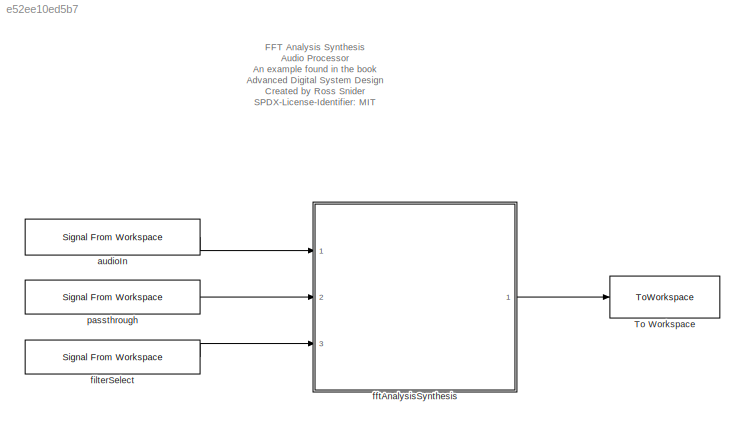
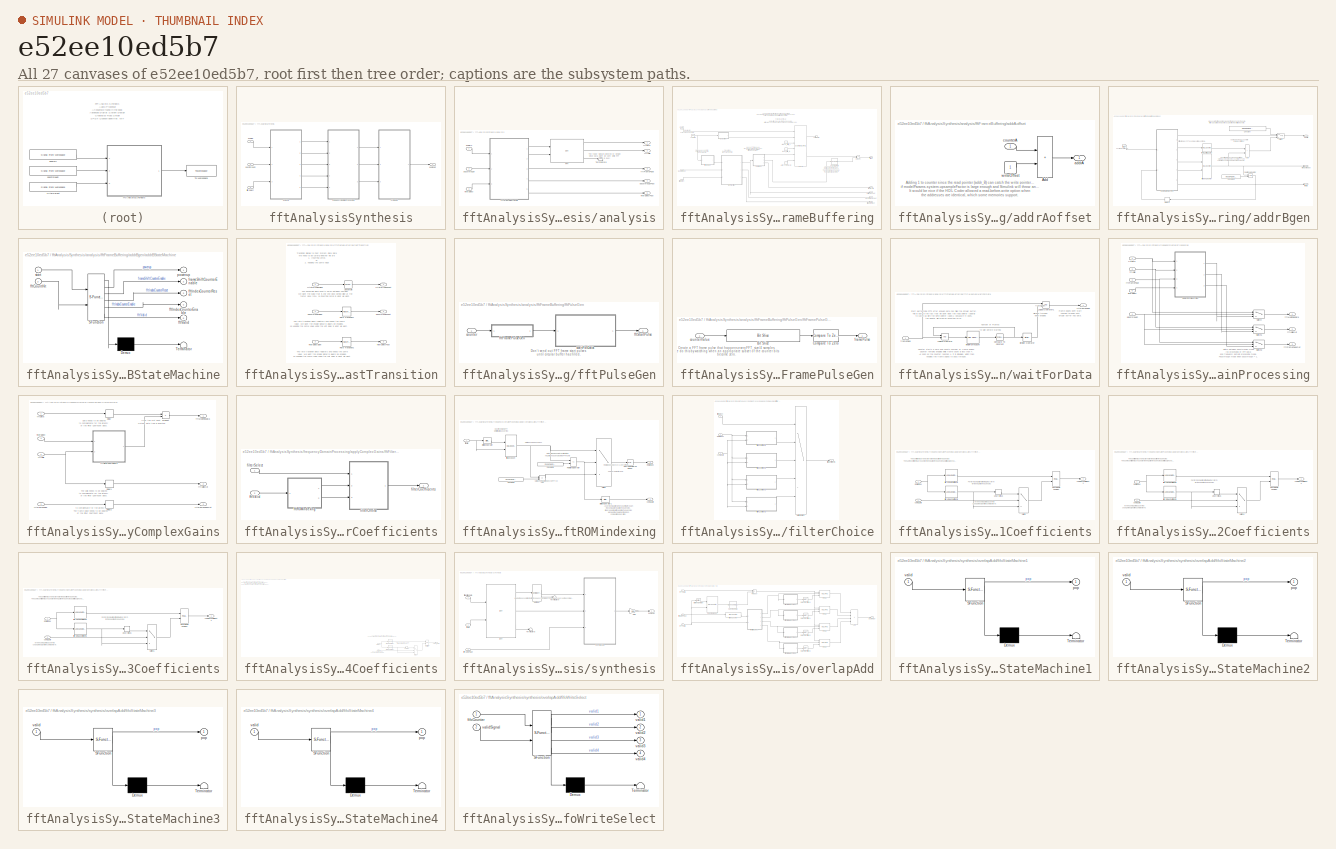
[diagram: thumbnail index - all 27 canvases of the model, root first then tree order]
MODEL slx_e52ee10ed5b7
KIND model
CONFIG AbsTol = auto
CONFIG EnableMultiTasking = off
CONFIG FixedStep = auto
CONFIG InitFcn = initCallback
CONFIG MaxStep = auto
CONFIG MinStep = auto
CONFIG PostLoadFcn = postLoadCallback
CONFIG RelTol = 1e-3
CONFIG SampleTimeConstraint = Unconstrained
CONFIG SolverName = FixedStepDiscrete
CONFIG StartTime = 0.0
CONFIG StopFcn = stopCallback
CONFIG StopTime = simParams.stopTime
BLOCK [ToWorkspace] To Workspace
  FixptAsFi = on
  MaxDataPoints = inf
  Ports = [1]
  SampleTime = -1
  Save2DSignal = 2-D array (concatenate along first dimension)
  VariableName = audioOut
BLOCK [Reference] audioIn  REF=dspsrcs4/Signal From
Workspace
  Ports = [0, 1]
  SourceBlock = dspsrcs4/Signal From\nWorkspace
  SourceProductBaseCode = DS
  SourceType = Signal From Workspace
BLOCK [SubSystem] fftAnalysisSynthesis
  Ports = [3, 1]
  RequestExecContextInheritance = off
  TreatAsAtomicUnit = on
BLOCK [SubSystem] fftAnalysisSynthesis/analysis
  Ports = [3, 5]
  RequestExecContextInheritance = off
BLOCK [Reference] fftAnalysisSynthesis/analysis/FFT  REF=dsphdlxfrm2/FFT
  Ports = [2, 3]
  SourceBlock = dsphdlxfrm2/FFT
  SourceProductBaseCode = HS
  SourceType = FFT
BLOCK [Terminator] fftAnalysisSynthesis/analysis/Terminator6
BLOCK [Inport] fftAnalysisSynthesis/analysis/audioIn
BLOCK [Outport] fftAnalysisSynthesis/analysis/fftData
  VectorParamsAs1DForOutWhenUnconnected = off
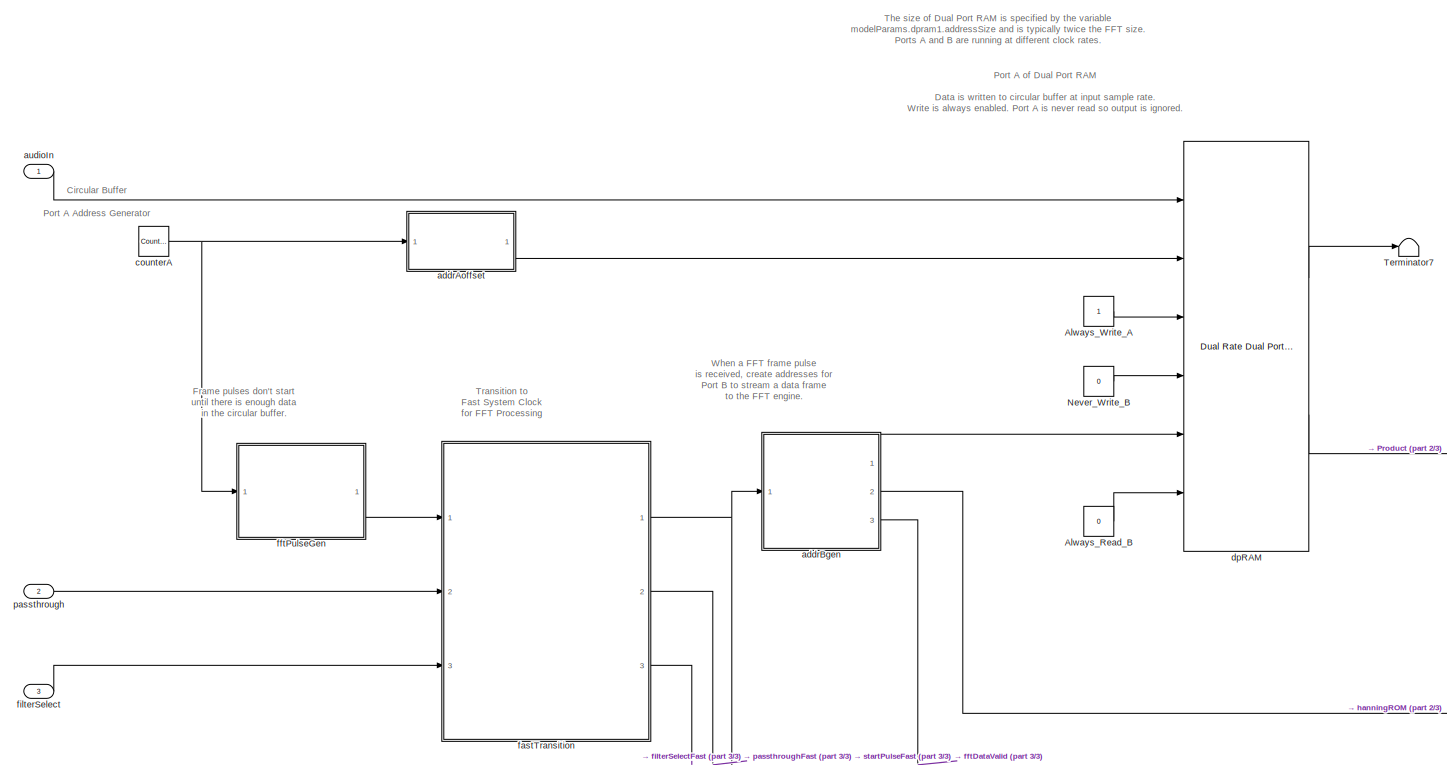
[diagram: fftAnalysisSynthesis/analysis/fftFrameBuffering - part 1/3, center side, full height]
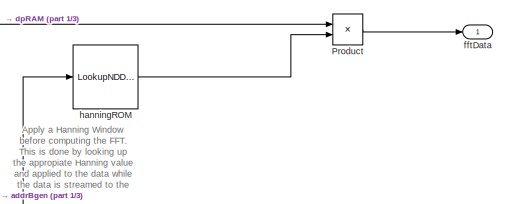
[diagram: fftAnalysisSynthesis/analysis/fftFrameBuffering - part 2/3, middle right region]
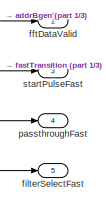
[diagram: fftAnalysisSynthesis/analysis/fftFrameBuffering - part 3/3, bottom right region]
BLOCK [SubSystem] fftAnalysisSynthesis/analysis/fftFrameBuffering
  Ports = [3, 5]
  RequestExecContextInheritance = off
BLOCK [Constant] fftAnalysisSynthesis/analysis/fftFrameBuffering/Always_Read_B
  OutDataTypeStr = boolean
  SampleTime = modelParams.audio.samplePeriod/modelParams.system.upsampleFactor
  Value = 0
BLOCK [Constant] fftAnalysisSynthesis/analysis/fftFrameBuffering/Always_Write_A
  OutDataTypeStr = boolean
  SampleTime = modelParams.audio.samplePeriod
BLOCK [Constant] fftAnalysisSynthesis/analysis/fftFrameBuffering/Never_Write_B
  OutDataTypeStr = modelParams.audio.dataType
  SampleTime = modelParams.audio.samplePeriod/modelParams.system.upsampleFactor
  Value = 0
BLOCK [Product] fftAnalysisSynthesis/analysis/fftFrameBuffering/Product
  OutDataTypeStr = modelParams.audio.dataType
  Ports = [2, 1]
BLOCK [Terminator] fftAnalysisSynthesis/analysis/fftFrameBuffering/Terminator7
BLOCK [SubSystem] fftAnalysisSynthesis/analysis/fftFrameBuffering/addrAoffset
  Ports = [1, 1]
  RequestExecContextInheritance = off
BLOCK [Sum] fftAnalysisSynthesis/analysis/fftFrameBuffering/addrAoffset/Add
  IconShape = rectangular
  OutDataTypeStr = fixdt(0,modelParams.dpram1.addressSize,0)
  Ports = [2, 1]
BLOCK [Outport] fftAnalysisSynthesis/analysis/fftFrameBuffering/addrAoffset/addrA
  VectorParamsAs1DForOutWhenUnconnected = off
BLOCK [Inport] fftAnalysisSynthesis/analysis/fftFrameBuffering/addrAoffset/counterA
BLOCK [Constant] fftAnalysisSynthesis/analysis/fftFrameBuffering/addrAoffset/writeOffset
  OutDataTypeStr = fixdt(0,modelParams.dpram1.addressSize,0)
  SampleTime = modelParams.audio.samplePeriod
BLOCK [SubSystem] fftAnalysisSynthesis/analysis/fftFrameBuffering/addrBgen
  Ports = [1, 3]
  RequestExecContextInheritance = off
BLOCK [Sum] fftAnalysisSynthesis/analysis/fftFrameBuffering/addrBgen/Add
  IconShape = rectangular
  OutDataTypeStr = fixdt(0,modelParams.dpram1.addressSize,0)
  Ports = [2, 1]
BLOCK [Constant] fftAnalysisSynthesis/analysis/fftFrameBuffering/addrBgen/Constant
  OutDataTypeStr = fixdt(0,modelParams.dpram1.addressSize,0)
  SampleTime = modelParams.audio.samplePeriod/modelParams.system.upsampleFactor
  Value = modelParams.fft.size + modelParams.fft.frameShift
BLOCK [Constant] fftAnalysisSynthesis/analysis/fftFrameBuffering/addrBgen/Constant1
  OutDataTypeStr = fixdt(0,modelParams.dpram1.addressSize,0)
  SampleTime = modelParams.audio.samplePeriod/modelParams.system.upsampleFactor
  Value = modelParams.fft.size-2
BLOCK [Delay] fftAnalysisSynthesis/analysis/fftFrameBuffering/addrBgen/Delay2
  DelayLength = 1
  InputPortMap = u0
  Ports = [1, 1]
BLOCK [RelationalOperator] fftAnalysisSynthesis/analysis/fftFrameBuffering/addrBgen/Relational Operator
  InputSameDT = off
  OutDataTypeStr = boolean
  Ports = [2, 1]
  RndMeth = Simplest
BLOCK [Switch] fftAnalysisSynthesis/analysis/fftFrameBuffering/addrBgen/Switch
  Criteria = u2 ~= 0
  InputSameDT = off
  SaturateOnIntegerOverflow = off
BLOCK [Outport] fftAnalysisSynthesis/analysis/fftFrameBuffering/addrBgen/addrB
BLOCK [SubSystem] fftAnalysisSynthesis/analysis/fftFrameBuffering/addrBgen/addrBStateMachine
  ErrorFcn = Stateflow.Translate.translate
  PermitHierarchicalResolution = ExplicitOnly
  Ports = [2, 5]
  RequestExecContextInheritance = off
  SFBlockType = MATLAB Function
  TreatAsAtomicUnit = on
BLOCK [Demux] fftAnalysisSynthesis/analysis/fftFrameBuffering/addrBgen/addrBStateMachine/ Demux 
  Outputs = 1
  Ports = [1, 1]
BLOCK [S-Function] fftAnalysisSynthesis/analysis/fftFrameBuffering/addrBgen/addrBStateMachine/ SFunction 
  EnableBusSupport = on
  FunctionName = sf_sfun
  PortCounts = [2 6]
  Ports = [2, 6]
  SFcnIsStateOwnerBlock = off
  SFunctionDeploymentMode = off
  Tag = Stateflow S-Function 1
BLOCK [Terminator] fftAnalysisSynthesis/analysis/fftFrameBuffering/addrBgen/addrBStateMachine/ Terminator 
BLOCK [Inport] fftAnalysisSynthesis/analysis/fftFrameBuffering/addrBgen/addrBStateMachine/fftCountHit
  Port = 2
BLOCK [Outport] fftAnalysisSynthesis/analysis/fftFrameBuffering/addrBgen/addrBStateMachine/fftIndexCounterEnable
  Port = 4
BLOCK [Outport] fftAnalysisSynthesis/analysis/fftFrameBuffering/addrBgen/addrBStateMachine/fftIndexCounterReset
  Port = 3
BLOCK [Outport] fftAnalysisSynthesis/analysis/fftFrameBuffering/addrBgen/addrBStateMachine/fftValid
  Port = 5
BLOCK [Outport] fftAnalysisSynthesis/analysis/fftFrameBuffering/addrBgen/addrBStateMachine/frameShiftCounterEnable
  Port = 2
  VectorParamsAs1DForOutWhenUnconnected = off
BLOCK [Outport] fftAnalysisSynthesis/analysis/fftFrameBuffering/addrBgen/addrBStateMachine/powerup
BLOCK [Inport] fftAnalysisSynthesis/analysis/fftFrameBuffering/addrBgen/addrBStateMachine/start
BLOCK [Reference] fftAnalysisSynthesis/analysis/fftFrameBuffering/addrBgen/fftIndexCounter  REF=hdlsllib/Sources/HDL Counter
  Ports = [2, 1]
  SourceBlock = hdlsllib/Sources/HDL Counter
  SourceProductBaseCode = SL
  SourceType = HDL Counter
BLOCK [Inport] fftAnalysisSynthesis/analysis/fftFrameBuffering/addrBgen/fftStart
BLOCK [Outport] fftAnalysisSynthesis/analysis/fftFrameBuffering/addrBgen/fftValid
  Port = 3
BLOCK [Reference] fftAnalysisSynthesis/analysis/fftFrameBuffering/addrBgen/frameShiftCounter  REF=hdlsllib/Sources/HDL Counter
  Ports = [1, 1]
  SourceBlock = hdlsllib/Sources/HDL Counter
  SourceProductBaseCode = SL
  SourceType = HDL Counter
BLOCK [Outport] fftAnalysisSynthesis/analysis/fftFrameBuffering/addrBgen/windowIndex
  Port = 2
BLOCK [Inport] fftAnalysisSynthesis/analysis/fftFrameBuffering/audioIn
BLOCK [Reference] fftAnalysisSynthesis/analysis/fftFrameBuffering/counterA  REF=simulink/Sources/Counter
Free-Running
  Ports = [0, 1]
  SourceBlock = simulink/Sources/Counter\nFree-Running
  SourceProductBaseCode = SL
  SourceType = Counter Free-Running
BLOCK [Reference] fftAnalysisSynthesis/analysis/fftFrameBuffering/dpRAM  REF=hdlsllib/HDL RAMs/Dual Rate Dual Port RAM
  Ports = [6, 2]
  SourceBlock = hdlsllib/HDL RAMs/Dual Rate Dual Port RAM
  SourceProductBaseCode = SL
  SourceType = Dual-rate dual-port RAM
BLOCK [SubSystem] fftAnalysisSynthesis/analysis/fftFrameBuffering/fastTransition
  Ports = [3, 3]
  RequestExecContextInheritance = off
BLOCK [RateTransition] fftAnalysisSynthesis/analysis/fftFrameBuffering/fastTransition/Rate Transition1
  OutPortSampleTimeMultiple = 1/modelParams.system.upsampleFactor
  OutPortSampleTimeOpt = Multiple of input port sample time
BLOCK [RateTransition] fftAnalysisSynthesis/analysis/fftFrameBuffering/fastTransition/Rate Transition2
  InitialCondition = 3
  OutPortSampleTimeMultiple = 1/modelParams.system.upsampleFactor
  OutPortSampleTimeOpt = Multiple of input port sample time
BLOCK [Reference] fftAnalysisSynthesis/analysis/fftFrameBuffering/fastTransition/Upsample  REF=dspsigops/Upsample
  Ports = [1, 1]
  SourceBlock = dspsigops/Upsample
  SourceProductBaseCode = DS
  SourceType = Upsample
  UserDataPersistent = on
BLOCK [Outport] fftAnalysisSynthesis/analysis/fftFrameBuffering/fastTransition/fftStartPulseFast
BLOCK [Inport] fftAnalysisSynthesis/analysis/fftFrameBuffering/fastTransition/fftStartPulseSlow
BLOCK [Outport] fftAnalysisSynthesis/analysis/fftFrameBuffering/fastTransition/filterSelectFast
  Port = 3
BLOCK [Inport] fftAnalysisSynthesis/analysis/fftFrameBuffering/fastTransition/filterSelectSlow
  Port = 3
BLOCK [Outport] fftAnalysisSynthesis/analysis/fftFrameBuffering/fastTransition/passthroughFast
  Port = 2
BLOCK [Inport] fftAnalysisSynthesis/analysis/fftFrameBuffering/fastTransition/passthroughSlow
  Port = 2
BLOCK [Outport] fftAnalysisSynthesis/analysis/fftFrameBuffering/fftData
  VectorParamsAs1DForOutWhenUnconnected = off
BLOCK [Outport] fftAnalysisSynthesis/analysis/fftFrameBuffering/fftDataValid
  Port = 2
  VectorParamsAs1DForOutWhenUnconnected = off
BLOCK [SubSystem] fftAnalysisSynthesis/analysis/fftFrameBuffering/fftPulseGen
  Ports = [1, 1]
  RequestExecContextInheritance = off
BLOCK [Inport] fftAnalysisSynthesis/analysis/fftFrameBuffering/fftPulseGen/counter
BLOCK [SubSystem] fftAnalysisSynthesis/analysis/fftFrameBuffering/fftPulseGen/fftFramePulseGen
  Ports = [1, 1]
  RequestExecContextInheritance = off
BLOCK [Reference] fftAnalysisSynthesis/analysis/fftFrameBuffering/fftPulseGen/fftFramePulseGen/Bit Slice  REF=hdlsllib/Logic and Bit
Operations/Bit Slice
  Ports = [1, 1]
  SourceBlock = hdlsllib/Logic and Bit\nOperations/Bit Slice
  SourceProductBaseCode = SL
  SourceType = Bit Slice
BLOCK [Reference] fftAnalysisSynthesis/analysis/fftFrameBuffering/fftPulseGen/fftFramePulseGen/Compare To Zero  REF=simulink/Logic and Bit
Operations/Compare
To Zero
  Ports = [1, 1]
  SourceBlock = simulink/Logic and Bit\nOperations/Compare\nTo Zero
  SourceProductBaseCode = SL
  SourceType = Compare To Zero
BLOCK [Inport] fftAnalysisSynthesis/analysis/fftFrameBuffering/fftPulseGen/fftFramePulseGen/counterValue 
BLOCK [Outport] fftAnalysisSynthesis/analysis/fftFrameBuffering/fftPulseGen/fftFramePulseGen/framePulse
  VectorParamsAs1DForOutWhenUnconnected = off
BLOCK [Outport] fftAnalysisSynthesis/analysis/fftFrameBuffering/fftPulseGen/fftStartPulse
  VectorParamsAs1DForOutWhenUnconnected = off
BLOCK [SubSystem] fftAnalysisSynthesis/analysis/fftFrameBuffering/fftPulseGen/waitForData
  Ports = [1, 1]
  RequestExecContextInheritance = off
BLOCK [Reference] fftAnalysisSynthesis/analysis/fftFrameBuffering/fftPulseGen/waitForData/Bitwise Operator  REF=simulink/Logic and Bit
Operations/Bitwise
Operator
  Ports = [1, 1]
  SourceBlock = simulink/Logic and Bit\nOperations/Bitwise\nOperator
  SourceProductBaseCode = SL
  SourceType = Bitwise Operator
BLOCK [Reference] fftAnalysisSynthesis/analysis/fftFrameBuffering/fftPulseGen/waitForData/Compare To Constant  REF=simulink/Logic and Bit
Operations/Compare
To Constant
  Ports = [1, 1]
  SourceBlock = simulink/Logic and Bit\nOperations/Compare\nTo Constant
  SourceProductBaseCode = SL
  SourceType = Compare To Constant
BLOCK [Logic] fftAnalysisSynthesis/analysis/fftFrameBuffering/fftPulseGen/waitForData/Logical Operator
  AllPortsSameDT = off
  OutDataTypeStr = boolean
  Ports = [2, 1]
BLOCK [Logic] fftAnalysisSynthesis/analysis/fftFrameBuffering/fftPulseGen/waitForData/Logical Operator1
  AllPortsSameDT = off
  OutDataTypeStr = boolean
  Ports = [2, 1]
BLOCK [Outport] fftAnalysisSynthesis/analysis/fftFrameBuffering/fftPulseGen/waitForData/fftFramePulse
  VectorParamsAs1DForOutWhenUnconnected = off
BLOCK [Inport] fftAnalysisSynthesis/analysis/fftFrameBuffering/fftPulseGen/waitForData/framePulse
BLOCK [Reference] fftAnalysisSynthesis/analysis/fftFrameBuffering/fftPulseGen/waitForData/initialFrameCount  REF=hdlsllib/Sources/HDL Counter
  Ports = [1, 1]
  SourceBlock = hdlsllib/Sources/HDL Counter
  SourceProductBaseCode = SL
  SourceType = HDL Counter
BLOCK [Inport] fftAnalysisSynthesis/analysis/fftFrameBuffering/filterSelect
  Port = 3
BLOCK [Outport] fftAnalysisSynthesis/analysis/fftFrameBuffering/filterSelectFast
  Port = 5
BLOCK [LookupNDDirect] fftAnalysisSynthesis/analysis/fftFrameBuffering/hanningROM
  NumberOfTableDimensions = 1
  Ports = [1, 1]
  Table = modelParams.hanningWindow.coefficients
BLOCK [Inport] fftAnalysisSynthesis/analysis/fftFrameBuffering/passthrough
  Port = 2
BLOCK [Outport] fftAnalysisSynthesis/analysis/fftFrameBuffering/passthroughFast
  Port = 4
BLOCK [Outport] fftAnalysisSynthesis/analysis/fftFrameBuffering/startPulseFast
  Port = 3
  VectorParamsAs1DForOutWhenUnconnected = off
BLOCK [Outport] fftAnalysisSynthesis/analysis/fftFramePulse
  Port = 3
  VectorParamsAs1DForOutWhenUnconnected = off
BLOCK [Outport] fftAnalysisSynthesis/analysis/fftValid
  Port = 2
  VectorParamsAs1DForOutWhenUnconnected = off
BLOCK [Inport] fftAnalysisSynthesis/analysis/filterSelect
  Port = 3
BLOCK [Outport] fftAnalysisSynthesis/analysis/filterSelectFast
  Port = 5
BLOCK [Inport] fftAnalysisSynthesis/analysis/passthrough
  Port = 2
BLOCK [Outport] fftAnalysisSynthesis/analysis/passthroughFast
  Port = 4
BLOCK [Inport] fftAnalysisSynthesis/audioIn
BLOCK [Outport] fftAnalysisSynthesis/audioOut
  VectorParamsAs1DForOutWhenUnconnected = off
BLOCK [Inport] fftAnalysisSynthesis/filterSelect
  Port = 3
BLOCK [SubSystem] fftAnalysisSynthesis/frequencyDomainProcessing
  Ports = [5, 3]
  RequestExecContextInheritance = off
BLOCK [Switch] fftAnalysisSynthesis/frequencyDomainProcessing/Switch
  Criteria = u2 > Threshold
  InputSameDT = off
  SaturateOnIntegerOverflow = off
BLOCK [Switch] fftAnalysisSynthesis/frequencyDomainProcessing/Switch1
  Criteria = u2 > Threshold
  InputSameDT = off
  SaturateOnIntegerOverflow = off
BLOCK [Switch] fftAnalysisSynthesis/frequencyDomainProcessing/Switch2
  Criteria = u2 > Threshold
  InputSameDT = off
  SaturateOnIntegerOverflow = off
BLOCK [SubSystem] fftAnalysisSynthesis/frequencyDomainProcessing/applyComplexGains
  Ports = [4, 3]
  RequestExecContextInheritance = off
BLOCK [Delay] fftAnalysisSynthesis/frequencyDomainProcessing/applyComplexGains/Delay
  DelayLength = 1
  InputPortMap = u0
  Ports = [1, 1]
BLOCK [Delay] fftAnalysisSynthesis/frequencyDomainProcessing/applyComplexGains/Delay1
  DelayLength = 1
  InputPortMap = u0
  Ports = [1, 1]
BLOCK [Delay] fftAnalysisSynthesis/frequencyDomainProcessing/applyComplexGains/Delay2
  DelayLength = 1
  InputPortMap = u0
  Ports = [1, 1]
BLOCK [Product] fftAnalysisSynthesis/frequencyDomainProcessing/applyComplexGains/Product
  OutDataTypeStr = Inherit: Same as first input
  Ports = [2, 1]
BLOCK [Inport] fftAnalysisSynthesis/frequencyDomainProcessing/applyComplexGains/fftData
BLOCK [SubSystem] fftAnalysisSynthesis/frequencyDomainProcessing/applyComplexGains/fftFilterCoefficients
  Ports = [2, 1]
  RequestExecContextInheritance = off
BLOCK [SubSystem] fftAnalysisSynthesis/frequencyDomainProcessing/applyComplexGains/fftFilterCoefficients/fftROMindexing
  Ports = [1, 2]
  RequestExecContextInheritance = off
BLOCK [Sum] fftAnalysisSynthesis/frequencyDomainProcessing/applyComplexGains/fftFilterCoefficients/fftROMindexing/Add
  IconShape = rectangular
  Inputs = -+
  Ports = [2, 1]
BLOCK [Reference] fftAnalysisSynthesis/frequencyDomainProcessing/applyComplexGains/fftFilterCoefficients/fftROMindexing/Bitwise Operator  REF=simulink/Logic and Bit
Operations/Bitwise
Operator
  Ports = [1, 1]
  SourceBlock = simulink/Logic and Bit\nOperations/Bitwise\nOperator
  SourceProductBaseCode = SL
  SourceType = Bitwise Operator
BLOCK [Reference] fftAnalysisSynthesis/frequencyDomainProcessing/applyComplexGains/fftFilterCoefficients/fftROMindexing/Bitwise Operator1  REF=simulink/Logic and Bit
Operations/Bitwise
Operator
  Ports = [1, 1]
  SourceBlock = simulink/Logic and Bit\nOperations/Bitwise\nOperator
  SourceProductBaseCode = SL
  SourceType = Bitwise Operator
BLOCK [Constant] fftAnalysisSynthesis/frequencyDomainProcessing/applyComplexGains/fftFilterCoefficients/fftROMindexing/Constant1
  OutDataTypeStr = fixdt(0,modelParams.fft.Nbits+1,0)
  SampleTime = modelParams.audio.samplePeriod/modelParams.system.upsampleFactor
  Value = modelParams.fft.size + 2
BLOCK [Constant] fftAnalysisSynthesis/frequencyDomainProcessing/applyComplexGains/fftFilterCoefficients/fftROMindexing/Constant5
  OutDataTypeStr = fixdt(0,modelParams.fft.Nbits,0)
  SampleTime = modelParams.audio.samplePeriod/modelParams.system.upsampleFactor
  Value = modelParams.fft.sizeHalf+1
BLOCK [Reference] fftAnalysisSynthesis/frequencyDomainProcessing/applyComplexGains/fftFilterCoefficients/fftROMindexing/Decrement Stored Integer  REF=hdlsllib/Math
Operations/Decrement
Stored Integer
  Ports = [1, 1]
  SourceBlock = hdlsllib/Math\nOperations/Decrement\nStored Integer
  SourceProductBaseCode = SL
  SourceType = Stored Integer Value Decrement
BLOCK [Outport] fftAnalysisSynthesis/frequencyDomainProcessing/applyComplexGains/fftFilterCoefficients/fftROMindexing/ROMindex
BLOCK [RelationalOperator] fftAnalysisSynthesis/frequencyDomainProcessing/applyComplexGains/fftFilterCoefficients/fftROMindexing/Relational Operator
  InputSameDT = off
  Operator = <=
  OutDataTypeStr = boolean
  Ports = [2, 1]
  ZeroCross = off
BLOCK [Switch] fftAnalysisSynthesis/frequencyDomainProcessing/applyComplexGains/fftFilterCoefficients/fftROMindexing/Switch
  Criteria = u2 > Threshold
  InputSameDT = off
  SaturateOnIntegerOverflow = off
BLOCK [Outport] fftAnalysisSynthesis/frequencyDomainProcessing/applyComplexGains/fftFilterCoefficients/fftROMindexing/conjugate
  Port = 2
BLOCK [Reference] fftAnalysisSynthesis/frequencyDomainProcessing/applyComplexGains/fftFilterCoefficients/fftROMindexing/fftIndexCount  REF=hdlsllib/Sources/HDL Counter
  Ports = [2, 1]
  SourceBlock = hdlsllib/Sources/HDL Counter
  SourceProductBaseCode = SL
  SourceType = HDL Counter
BLOCK [Inport] fftAnalysisSynthesis/frequencyDomainProcessing/applyComplexGains/fftFilterCoefficients/fftROMindexing/fftValid
BLOCK [Inport] fftAnalysisSynthesis/frequencyDomainProcessing/applyComplexGains/fftFilterCoefficients/fftValid
  Port = 2
BLOCK [SubSystem] fftAnalysisSynthesis/frequencyDomainProcessing/applyComplexGains/fftFilterCoefficients/filterChoice
  Ports = [3, 1]
  RequestExecContextInheritance = off
BLOCK [MultiPortSwitch] fftAnalysisSynthesis/frequencyDomainProcessing/applyComplexGains/fftFilterCoefficients/filterChoice/Multiport Switch
  DataPortOrder = Zero-based contiguous
  InputSameDT = off
  Inputs = 4
  Ports = [5, 1]
  SaturateOnIntegerOverflow = off
  zeroidx = on
BLOCK [Inport] fftAnalysisSynthesis/frequencyDomainProcessing/applyComplexGains/fftFilterCoefficients/filterChoice/ROMindex
  Port = 2
BLOCK [Inport] fftAnalysisSynthesis/frequencyDomainProcessing/applyComplexGains/fftFilterCoefficients/filterChoice/conjugate
  Port = 3
BLOCK [SubSystem] fftAnalysisSynthesis/frequencyDomainProcessing/applyComplexGains/fftFilterCoefficients/filterChoice/filter1Coefficients
  Ports = [2, 1]
  RequestExecContextInheritance = off
BLOCK [Inport] fftAnalysisSynthesis/frequencyDomainProcessing/applyComplexGains/fftFilterCoefficients/filterChoice/filter1Coefficients/ROMindex
BLOCK [RealImagToComplex] fftAnalysisSynthesis/frequencyDomainProcessing/applyComplexGains/fftFilterCoefficients/filterChoice/filter1Coefficients/Real-Imag to Complex
  Ports = [2, 1]
BLOCK [Switch] fftAnalysisSynthesis/frequencyDomainProcessing/applyComplexGains/fftFilterCoefficients/filterChoice/filter1Coefficients/Switch
  Criteria = u2 ~= 0
  InputSameDT = off
  SaturateOnIntegerOverflow = off
BLOCK [UnaryMinus] fftAnalysisSynthesis/frequencyDomainProcessing/applyComplexGains/fftFilterCoefficients/filterChoice/filter1Coefficients/Unary Minus
BLOCK [Outport] fftAnalysisSynthesis/frequencyDomainProcessing/applyComplexGains/fftFilterCoefficients/filterChoice/filter1Coefficients/complexCoefficients
BLOCK [Inport] fftAnalysisSynthesis/frequencyDomainProcessing/applyComplexGains/fftFilterCoefficients/filterChoice/filter1Coefficients/conjugate
  Port = 2
BLOCK [LookupNDDirect] fftAnalysisSynthesis/frequencyDomainProcessing/applyComplexGains/fftFilterCoefficients/filterChoice/filter1Coefficients/filter1ImagCoefficients
  NumberOfTableDimensions = 1
  Ports = [1, 1]
  Table = modelParams.fftGainsF1Imag
  TableDataTypeStr = modelParams.fftROMDataType
BLOCK [LookupNDDirect] fftAnalysisSynthesis/frequencyDomainProcessing/applyComplexGains/fftFilterCoefficients/filterChoice/filter1Coefficients/filter1RealCoefficients
  NumberOfTableDimensions = 1
  Ports = [1, 1]
  Table = modelParams.fftGainsF1Real
  TableDataTypeStr = modelParams.fftROMDataType
BLOCK [SubSystem] fftAnalysisSynthesis/frequencyDomainProcessing/applyComplexGains/fftFilterCoefficients/filterChoice/filter2Coefficients
  Ports = [2, 1]
  RequestExecContextInheritance = off
BLOCK [Inport] fftAnalysisSynthesis/frequencyDomainProcessing/applyComplexGains/fftFilterCoefficients/filterChoice/filter2Coefficients/ROMindex
BLOCK [RealImagToComplex] fftAnalysisSynthesis/frequencyDomainProcessing/applyComplexGains/fftFilterCoefficients/filterChoice/filter2Coefficients/Real-Imag to Complex
  Ports = [2, 1]
BLOCK [Switch] fftAnalysisSynthesis/frequencyDomainProcessing/applyComplexGains/fftFilterCoefficients/filterChoice/filter2Coefficients/Switch1
  Criteria = u2 ~= 0
  InputSameDT = off
  SaturateOnIntegerOverflow = off
BLOCK [UnaryMinus] fftAnalysisSynthesis/frequencyDomainProcessing/applyComplexGains/fftFilterCoefficients/filterChoice/filter2Coefficients/Unary Minus
BLOCK [Outport] fftAnalysisSynthesis/frequencyDomainProcessing/applyComplexGains/fftFilterCoefficients/filterChoice/filter2Coefficients/complexCoefficients
BLOCK [Inport] fftAnalysisSynthesis/frequencyDomainProcessing/applyComplexGains/fftFilterCoefficients/filterChoice/filter2Coefficients/conjugate
  Port = 2
BLOCK [LookupNDDirect] fftAnalysisSynthesis/frequencyDomainProcessing/applyComplexGains/fftFilterCoefficients/filterChoice/filter2Coefficients/filter2ImagCoefficients
  NumberOfTableDimensions = 1
  Ports = [1, 1]
  Table = modelParams.fftGainsF2Imag
  TableDataTypeStr = modelParams.fftROMDataType
BLOCK [LookupNDDirect] fftAnalysisSynthesis/frequencyDomainProcessing/applyComplexGains/fftFilterCoefficients/filterChoice/filter2Coefficients/filter2RealCoefficients
  NumberOfTableDimensions = 1
  Ports = [1, 1]
  Table = modelParams.fftGainsF2Real
  TableDataTypeStr = modelParams.fftROMDataType
BLOCK [SubSystem] fftAnalysisSynthesis/frequencyDomainProcessing/applyComplexGains/fftFilterCoefficients/filterChoice/filter3Coefficients
  Ports = [2, 1]
  RequestExecContextInheritance = off
BLOCK [Inport] fftAnalysisSynthesis/frequencyDomainProcessing/applyComplexGains/fftFilterCoefficients/filterChoice/filter3Coefficients/ROMindex
BLOCK [RealImagToComplex] fftAnalysisSynthesis/frequencyDomainProcessing/applyComplexGains/fftFilterCoefficients/filterChoice/filter3Coefficients/Real-Imag to Complex
  Ports = [2, 1]
BLOCK [Switch] fftAnalysisSynthesis/frequencyDomainProcessing/applyComplexGains/fftFilterCoefficients/filterChoice/filter3Coefficients/Switch1
  Criteria = u2 ~= 0
  InputSameDT = off
  SaturateOnIntegerOverflow = off
BLOCK [UnaryMinus] fftAnalysisSynthesis/frequencyDomainProcessing/applyComplexGains/fftFilterCoefficients/filterChoice/filter3Coefficients/Unary Minus
BLOCK [Outport] fftAnalysisSynthesis/frequencyDomainProcessing/applyComplexGains/fftFilterCoefficients/filterChoice/filter3Coefficients/complexCoefficients
BLOCK [Inport] fftAnalysisSynthesis/frequencyDomainProcessing/applyComplexGains/fftFilterCoefficients/filterChoice/filter3Coefficients/conjugate
  Port = 2
BLOCK [LookupNDDirect] fftAnalysisSynthesis/frequencyDomainProcessing/applyComplexGains/fftFilterCoefficients/filterChoice/filter3Coefficients/filter3ImagCoefficients
  NumberOfTableDimensions = 1
  Ports = [1, 1]
  Table = modelParams.fftGainsF3Imag
  TableDataTypeStr = modelParams.fftROMDataType
BLOCK [LookupNDDirect] fftAnalysisSynthesis/frequencyDomainProcessing/applyComplexGains/fftFilterCoefficients/filterChoice/filter3Coefficients/filter3RealCoefficients
  NumberOfTableDimensions = 1
  Ports = [1, 1]
  Table = modelParams.fftGainsF3Real
  TableDataTypeStr = modelParams.fftROMDataType
BLOCK [SubSystem] fftAnalysisSynthesis/frequencyDomainProcessing/applyComplexGains/fftFilterCoefficients/filterChoice/filter4Coefficients
  Ports = [2, 1]
  RequestExecContextInheritance = off
BLOCK [Inport] fftAnalysisSynthesis/frequencyDomainProcessing/applyComplexGains/fftFilterCoefficients/filterChoice/filter4Coefficients/ROMindex
BLOCK [RealImagToComplex] fftAnalysisSynthesis/frequencyDomainProcessing/applyComplexGains/fftFilterCoefficients/filterChoice/filter4Coefficients/Real-Imag to Complex
  Ports = [2, 1]
BLOCK [Switch] fftAnalysisSynthesis/frequencyDomainProcessing/applyComplexGains/fftFilterCoefficients/filterChoice/filter4Coefficients/Switch1
  Criteria = u2 ~= 0
  InputSameDT = off
  SaturateOnIntegerOverflow = off
BLOCK [UnaryMinus] fftAnalysisSynthesis/frequencyDomainProcessing/applyComplexGains/fftFilterCoefficients/filterChoice/filter4Coefficients/Unary Minus
BLOCK [Outport] fftAnalysisSynthesis/frequencyDomainProcessing/applyComplexGains/fftFilterCoefficients/filterChoice/filter4Coefficients/complexCoefficients
BLOCK [Inport] fftAnalysisSynthesis/frequencyDomainProcessing/applyComplexGains/fftFilterCoefficients/filterChoice/filter4Coefficients/conjugate
  Port = 2
BLOCK [LookupNDDirect] fftAnalysisSynthesis/frequencyDomainProcessing/applyComplexGains/fftFilterCoefficients/filterChoice/filter4Coefficients/filter4ImagCoefficients1
  NumberOfTableDimensions = 1
  Ports = [1, 1]
  Table = modelParams.fftGainsF4Imag
  TableDataTypeStr = modelParams.fftROMDataType
BLOCK [LookupNDDirect] fftAnalysisSynthesis/frequencyDomainProcessing/applyComplexGains/fftFilterCoefficients/filterChoice/filter4Coefficients/filter4RealCoefficients1
  NumberOfTableDimensions = 1
  Ports = [1, 1]
  Table = modelParams.fftGainsF4Real
  TableDataTypeStr = modelParams.fftROMDataType
BLOCK [Outport] fftAnalysisSynthesis/frequencyDomainProcessing/applyComplexGains/fftFilterCoefficients/filterChoice/filterCoefficients
BLOCK [Inport] fftAnalysisSynthesis/frequencyDomainProcessing/applyComplexGains/fftFilterCoefficients/filterChoice/filterSelect
BLOCK [Outport] fftAnalysisSynthesis/frequencyDomainProcessing/applyComplexGains/fftFilterCoefficients/filterCoefficients
BLOCK [Inport] fftAnalysisSynthesis/frequencyDomainProcessing/applyComplexGains/fftFilterCoefficients/filterSelect
BLOCK [Inport] fftAnalysisSynthesis/frequencyDomainProcessing/applyComplexGains/fftFramePulse
  Port = 3
BLOCK [Outport] fftAnalysisSynthesis/frequencyDomainProcessing/applyComplexGains/fftFramePulseOut
  Port = 3
BLOCK [Outport] fftAnalysisSynthesis/frequencyDomainProcessing/applyComplexGains/fftModifiedData
BLOCK [Inport] fftAnalysisSynthesis/frequencyDomainProcessing/applyComplexGains/fftValid
  Port = 2
BLOCK [Outport] fftAnalysisSynthesis/frequencyDomainProcessing/applyComplexGains/fftValidOut
  Port = 2
BLOCK [Inport] fftAnalysisSynthesis/frequencyDomainProcessing/applyComplexGains/filterSelect
  Port = 4
BLOCK [Inport] fftAnalysisSynthesis/frequencyDomainProcessing/fftData
BLOCK [Inport] fftAnalysisSynthesis/frequencyDomainProcessing/fftFramePulse
  Port = 3
BLOCK [Outport] fftAnalysisSynthesis/frequencyDomainProcessing/fftFramePulseOut
  Port = 3
BLOCK [Outport] fftAnalysisSynthesis/frequencyDomainProcessing/fftModifiedData
  VectorParamsAs1DForOutWhenUnconnected = off
BLOCK [Inport] fftAnalysisSynthesis/frequencyDomainProcessing/fftValid
  Port = 2
BLOCK [Outport] fftAnalysisSynthesis/frequencyDomainProcessing/fftValidOut
  Port = 2
  VectorParamsAs1DForOutWhenUnconnected = off
BLOCK [Inport] fftAnalysisSynthesis/frequencyDomainProcessing/filterSelect
  Port = 5
BLOCK [Inport] fftAnalysisSynthesis/frequencyDomainProcessing/passthrough
  Port = 4
BLOCK [Inport] fftAnalysisSynthesis/passthrough
  Port = 2
BLOCK [SubSystem] fftAnalysisSynthesis/synthesis
  Ports = [3, 1]
  RequestExecContextInheritance = off
BLOCK [Gain] fftAnalysisSynthesis/synthesis/Gain
  Gain = 0.65
  OutDataTypeStr = modelParams.audio.dataType
BLOCK [Terminator] fftAnalysisSynthesis/synthesis/Terminator8
BLOCK [Terminator] fftAnalysisSynthesis/synthesis/Terminator9
BLOCK [Outport] fftAnalysisSynthesis/synthesis/audioOut
  VectorParamsAs1DForOutWhenUnconnected = off
BLOCK [Inport] fftAnalysisSynthesis/synthesis/fftFramePulse
  Port = 3
BLOCK [Inport] fftAnalysisSynthesis/synthesis/fftModifiedData
BLOCK [Inport] fftAnalysisSynthesis/synthesis/fftValid
  Port = 2
BLOCK [ComplexToRealImag] fftAnalysisSynthesis/synthesis/getReal
  Ports = [1, 2]
BLOCK [Reference] fftAnalysisSynthesis/synthesis/iFFT  REF=dsphdlxfrm2/IFFT
  Ports = [2, 3]
  SourceBlock = dsphdlxfrm2/IFFT
  SourceProductBaseCode = HS
  SourceType = IFFT
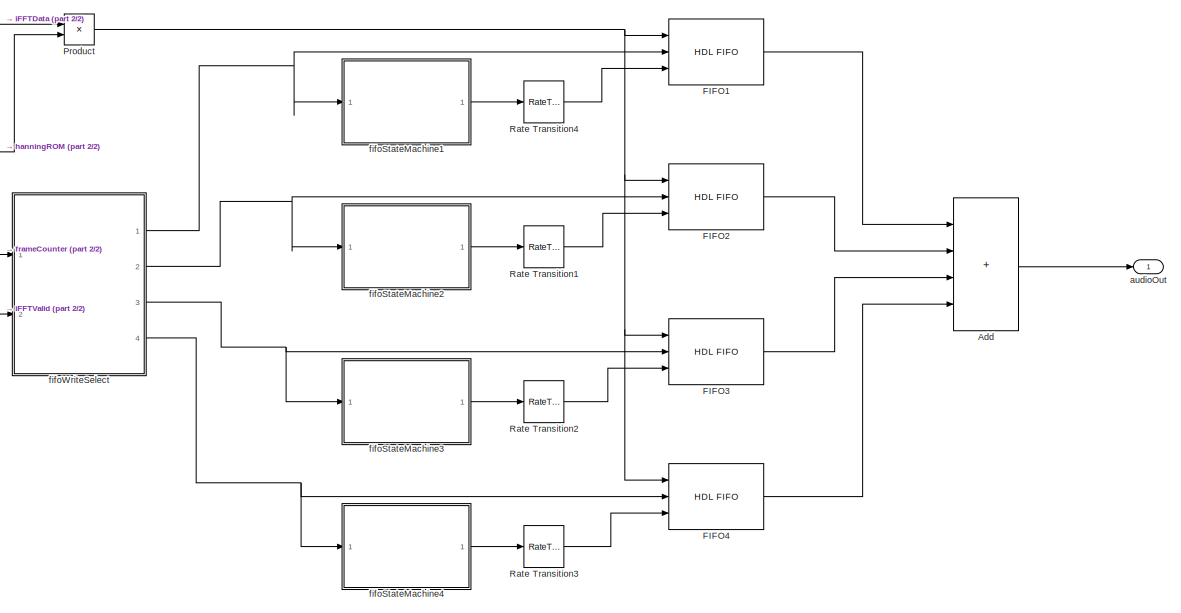
[diagram: fftAnalysisSynthesis/synthesis/overlapAdd - part 1/2, right side, full height]
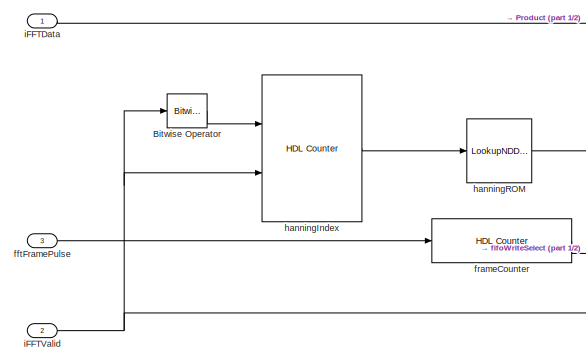
[diagram: fftAnalysisSynthesis/synthesis/overlapAdd - part 2/2, top left region]
BLOCK [SubSystem] fftAnalysisSynthesis/synthesis/overlapAdd
  Ports = [3, 1]
  RequestExecContextInheritance = off
BLOCK [Sum] fftAnalysisSynthesis/synthesis/overlapAdd/Add
  IconShape = rectangular
  Inputs = 4
  Ports = [4, 1]
BLOCK [Reference] fftAnalysisSynthesis/synthesis/overlapAdd/Bitwise Operator  REF=simulink/Logic and Bit
Operations/Bitwise
Operator
  Ports = [1, 1]
  SourceBlock = simulink/Logic and Bit\nOperations/Bitwise\nOperator
  SourceProductBaseCode = SL
  SourceType = Bitwise Operator
BLOCK [Reference] fftAnalysisSynthesis/synthesis/overlapAdd/FIFO1  REF=hdlsllib/HDL RAMs/HDL FIFO
  Ports = [3, 1]
  SourceBlock = hdlsllib/HDL RAMs/HDL FIFO
  SourceProductBaseCode = SL
  SourceType = HDL_FIFO
BLOCK [Reference] fftAnalysisSynthesis/synthesis/overlapAdd/FIFO2  REF=hdlsllib/HDL RAMs/HDL FIFO
  Ports = [3, 1]
  SourceBlock = hdlsllib/HDL RAMs/HDL FIFO
  SourceProductBaseCode = SL
  SourceType = HDL_FIFO
BLOCK [Reference] fftAnalysisSynthesis/synthesis/overlapAdd/FIFO3  REF=hdlsllib/HDL RAMs/HDL FIFO
  Ports = [3, 1]
  SourceBlock = hdlsllib/HDL RAMs/HDL FIFO
  SourceProductBaseCode = SL
  SourceType = HDL_FIFO
BLOCK [Reference] fftAnalysisSynthesis/synthesis/overlapAdd/FIFO4  REF=hdlsllib/HDL RAMs/HDL FIFO
  Ports = [3, 1]
  SourceBlock = hdlsllib/HDL RAMs/HDL FIFO
  SourceProductBaseCode = SL
  SourceType = HDL_FIFO
BLOCK [Product] fftAnalysisSynthesis/synthesis/overlapAdd/Product
  OutDataTypeStr = Inherit: Same as first input
  Ports = [2, 1]
BLOCK [RateTransition] fftAnalysisSynthesis/synthesis/overlapAdd/Rate Transition1
  OutPortSampleTimeMultiple = modelParams.system.upsampleFactor
  OutPortSampleTimeOpt = Multiple of input port sample time
BLOCK [RateTransition] fftAnalysisSynthesis/synthesis/overlapAdd/Rate Transition2
  OutPortSampleTimeMultiple = modelParams.system.upsampleFactor
  OutPortSampleTimeOpt = Multiple of input port sample time
BLOCK [RateTransition] fftAnalysisSynthesis/synthesis/overlapAdd/Rate Transition3
  OutPortSampleTimeMultiple = modelParams.system.upsampleFactor
  OutPortSampleTimeOpt = Multiple of input port sample time
BLOCK [RateTransition] fftAnalysisSynthesis/synthesis/overlapAdd/Rate Transition4
  OutPortSampleTimeMultiple = modelParams.system.upsampleFactor
  OutPortSampleTimeOpt = Multiple of input port sample time
BLOCK [Outport] fftAnalysisSynthesis/synthesis/overlapAdd/audioOut
  VectorParamsAs1DForOutWhenUnconnected = off
BLOCK [Inport] fftAnalysisSynthesis/synthesis/overlapAdd/fftFramePulse
  Port = 3
BLOCK [SubSystem] fftAnalysisSynthesis/synthesis/overlapAdd/fifoStateMachine1
  ErrorFcn = Stateflow.Translate.translate
  PermitHierarchicalResolution = ExplicitOnly
  Ports = [1, 1]
  RequestExecContextInheritance = off
  SFBlockType = MATLAB Function
  TreatAsAtomicUnit = on
BLOCK [Demux] fftAnalysisSynthesis/synthesis/overlapAdd/fifoStateMachine1/ Demux 
  Outputs = 1
  Ports = [1, 1]
BLOCK [S-Function] fftAnalysisSynthesis/synthesis/overlapAdd/fifoStateMachine1/ SFunction 
  EnableBusSupport = on
  FunctionName = sf_sfun
  PortCounts = [1 2]
  Ports = [1, 2]
  SFcnIsStateOwnerBlock = off
  SFunctionDeploymentMode = off
  Tag = Stateflow S-Function 11
BLOCK [Terminator] fftAnalysisSynthesis/synthesis/overlapAdd/fifoStateMachine1/ Terminator 
BLOCK [Outport] fftAnalysisSynthesis/synthesis/overlapAdd/fifoStateMachine1/pop
  VectorParamsAs1DForOutWhenUnconnected = off
BLOCK [Inport] fftAnalysisSynthesis/synthesis/overlapAdd/fifoStateMachine1/valid
BLOCK [SubSystem] fftAnalysisSynthesis/synthesis/overlapAdd/fifoStateMachine2
  ErrorFcn = Stateflow.Translate.translate
  PermitHierarchicalResolution = ExplicitOnly
  Ports = [1, 1]
  RequestExecContextInheritance = off
  SFBlockType = MATLAB Function
  TreatAsAtomicUnit = on
BLOCK [Demux] fftAnalysisSynthesis/synthesis/overlapAdd/fifoStateMachine2/ Demux 
  Outputs = 1
  Ports = [1, 1]
BLOCK [S-Function] fftAnalysisSynthesis/synthesis/overlapAdd/fifoStateMachine2/ SFunction 
  EnableBusSupport = on
  FunctionName = sf_sfun
  PortCounts = [1 2]
  Ports = [1, 2]
  SFcnIsStateOwnerBlock = off
  SFunctionDeploymentMode = off
  Tag = Stateflow S-Function 2
BLOCK [Terminator] fftAnalysisSynthesis/synthesis/overlapAdd/fifoStateMachine2/ Terminator 
BLOCK [Outport] fftAnalysisSynthesis/synthesis/overlapAdd/fifoStateMachine2/pop
  VectorParamsAs1DForOutWhenUnconnected = off
BLOCK [Inport] fftAnalysisSynthesis/synthesis/overlapAdd/fifoStateMachine2/valid
BLOCK [SubSystem] fftAnalysisSynthesis/synthesis/overlapAdd/fifoStateMachine3
  ErrorFcn = Stateflow.Translate.translate
  PermitHierarchicalResolution = ExplicitOnly
  Ports = [1, 1]
  RequestExecContextInheritance = off
  SFBlockType = MATLAB Function
  TreatAsAtomicUnit = on
BLOCK [Demux] fftAnalysisSynthesis/synthesis/overlapAdd/fifoStateMachine3/ Demux 
  Outputs = 1
  Ports = [1, 1]
BLOCK [S-Function] fftAnalysisSynthesis/synthesis/overlapAdd/fifoStateMachine3/ SFunction 
  EnableBusSupport = on
  FunctionName = sf_sfun
  PortCounts = [1 2]
  Ports = [1, 2]
  SFcnIsStateOwnerBlock = off
  SFunctionDeploymentMode = off
  Tag = Stateflow S-Function 3
BLOCK [Terminator] fftAnalysisSynthesis/synthesis/overlapAdd/fifoStateMachine3/ Terminator 
BLOCK [Outport] fftAnalysisSynthesis/synthesis/overlapAdd/fifoStateMachine3/pop
  VectorParamsAs1DForOutWhenUnconnected = off
BLOCK [Inport] fftAnalysisSynthesis/synthesis/overlapAdd/fifoStateMachine3/valid
BLOCK [SubSystem] fftAnalysisSynthesis/synthesis/overlapAdd/fifoStateMachine4
  ErrorFcn = Stateflow.Translate.translate
  PermitHierarchicalResolution = ExplicitOnly
  Ports = [1, 1]
  RequestExecContextInheritance = off
  SFBlockType = MATLAB Function
  TreatAsAtomicUnit = on
BLOCK [Demux] fftAnalysisSynthesis/synthesis/overlapAdd/fifoStateMachine4/ Demux 
  Outputs = 1
  Ports = [1, 1]
BLOCK [S-Function] fftAnalysisSynthesis/synthesis/overlapAdd/fifoStateMachine4/ SFunction 
  EnableBusSupport = on
  FunctionName = sf_sfun
  PortCounts = [1 2]
  Ports = [1, 2]
  SFcnIsStateOwnerBlock = off
  SFunctionDeploymentMode = off
  Tag = Stateflow S-Function 4
BLOCK [Terminator] fftAnalysisSynthesis/synthesis/overlapAdd/fifoStateMachine4/ Terminator 
BLOCK [Outport] fftAnalysisSynthesis/synthesis/overlapAdd/fifoStateMachine4/pop
  VectorParamsAs1DForOutWhenUnconnected = off
BLOCK [Inport] fftAnalysisSynthesis/synthesis/overlapAdd/fifoStateMachine4/valid
BLOCK [SubSystem] fftAnalysisSynthesis/synthesis/overlapAdd/fifoWriteSelect
  ErrorFcn = Stateflow.Translate.translate
  PermitHierarchicalResolution = ExplicitOnly
  Ports = [2, 4]
  RequestExecContextInheritance = off
  SFBlockType = MATLAB Function
  TreatAsAtomicUnit = on
BLOCK [Demux] fftAnalysisSynthesis/synthesis/overlapAdd/fifoWriteSelect/ Demux 
  Outputs = 1
  Ports = [1, 1]
BLOCK [S-Function] fftAnalysisSynthesis/synthesis/overlapAdd/fifoWriteSelect/ SFunction 
  EnableBusSupport = on
  FunctionName = sf_sfun
  PortCounts = [2 5]
  Ports = [2, 5]
  SFcnIsStateOwnerBlock = off
  SFunctionDeploymentMode = off
  Tag = Stateflow S-Function 10
BLOCK [Terminator] fftAnalysisSynthesis/synthesis/overlapAdd/fifoWriteSelect/ Terminator 
BLOCK [Inport] fftAnalysisSynthesis/synthesis/overlapAdd/fifoWriteSelect/fifoCounter
BLOCK [Outport] fftAnalysisSynthesis/synthesis/overlapAdd/fifoWriteSelect/valid1
  VectorParamsAs1DForOutWhenUnconnected = off
BLOCK [Outport] fftAnalysisSynthesis/synthesis/overlapAdd/fifoWriteSelect/valid2
  Port = 2
  VectorParamsAs1DForOutWhenUnconnected = off
BLOCK [Outport] fftAnalysisSynthesis/synthesis/overlapAdd/fifoWriteSelect/valid3
  Port = 3
  VectorParamsAs1DForOutWhenUnconnected = off
BLOCK [Outport] fftAnalysisSynthesis/synthesis/overlapAdd/fifoWriteSelect/valid4
  Port = 4
  VectorParamsAs1DForOutWhenUnconnected = off
BLOCK [Inport] fftAnalysisSynthesis/synthesis/overlapAdd/fifoWriteSelect/validSignal
  Port = 2
BLOCK [Reference] fftAnalysisSynthesis/synthesis/overlapAdd/frameCounter  REF=hdlsllib/Sources/HDL Counter
  Ports = [1, 1]
  SourceBlock = hdlsllib/Sources/HDL Counter
  SourceProductBaseCode = SL
  SourceType = HDL Counter
BLOCK [Reference] fftAnalysisSynthesis/synthesis/overlapAdd/hanningIndex  REF=hdlsllib/Sources/HDL Counter
  Ports = [2, 1]
  SourceBlock = hdlsllib/Sources/HDL Counter
  SourceProductBaseCode = SL
  SourceType = HDL Counter
BLOCK [LookupNDDirect] fftAnalysisSynthesis/synthesis/overlapAdd/hanningROM
  NumberOfTableDimensions = 1
  Ports = [1, 1]
  Table = modelParams.hanningWindow.coefficients
BLOCK [Inport] fftAnalysisSynthesis/synthesis/overlapAdd/iFFTData
BLOCK [Inport] fftAnalysisSynthesis/synthesis/overlapAdd/iFFTValid
  Port = 2
BLOCK [Reference] filterSelect  REF=dspsrcs4/Signal From
Workspace
  Ports = [0, 1]
  SourceBlock = dspsrcs4/Signal From\nWorkspace
  SourceProductBaseCode = DS
  SourceType = Signal From Workspace
BLOCK [Reference] passthrough  REF=dspsrcs4/Signal From
Workspace
  Ports = [0, 1]
  SourceBlock = dspsrcs4/Signal From\nWorkspace
  SourceProductBaseCode = DS
  SourceType = Signal From Workspace
ANNOTATION (root): FFT Analysis Synthesis Audio Processor An example found in the book Advanced Digital System Design Created by Ross Snider SPDX-License-Identifier: MIT <copyright redacted>
ANNOTATION fftAnalysisSynthesis/analysis: The ready signal is ignored by design since data won't be sent while FFT engine is busy.
ANNOTATION fftAnalysisSynthesis/analysis/fftFrameBuffering: Port B of Dual Port RAM Data is read from the circular buffer at a higher clock rate. Read is always enabled. Port B never writes so input data to port B is ignored (specified as zero).
ANNOTATION fftAnalysisSynthesis/analysis/fftFrameBuffering: Transition to Fast System Clock for FFT Processing
ANNOTATION fftAnalysisSynthesis/analysis/fftFrameBuffering: Apply a Hanning Window before computing the FFT. This is done by looking up the appropiate Hanning value and applied to the data while the data is streamed to the FFT engine.
ANNOTATION fftAnalysisSynthesis/analysis/fftFrameBuffering: Circular Buffer Port A Address Generator
ANNOTATION fftAnalysisSynthesis/analysis/fftFrameBuffering: Frame pulses don't start until there is enough data in the circular buffer.
ANNOTATION fftAnalysisSynthesis/analysis/fftFrameBuffering: Port A of Dual Port RAM Data is written to circular buffer at input sample rate. Write is always enabled. Port A is never read so output is ignored.
ANNOTATION fftAnalysisSynthesis/analysis/fftFrameBuffering: The size of Dual Port RAM is specified by the variable modelParams.dpram1.addressSize and is typically twice the FFT size. Ports A and B are running at different clock rates.
ANNOTATION fftAnalysisSynthesis/analysis/fftFrameBuffering: When a FFT frame pulse is received, create addresses for Port B to stream a data frame to the FFT engine.
ANNOTATION fftAnalysisSynthesis/analysis/fftFrameBuffering/addrAoffset: Adding 1 to counter since the read pointer (addr_B) can catch the write pointer (addr_A) if modelParams.system.upsampleFactor is large enough and Simulink will throw an error. It would be nice if the HDL Coder allowed a read-before-write option when the addresses are identical, which some memories support.
ANNOTATION fftAnalysisSynthesis/analysis/fftFrameBuffering/addrBgen: Add the FFT index counter to the frame shift offset
ANNOTATION fftAnalysisSynthesis/analysis/fftFrameBuffering/addrBgen: Count from 0 to FFT size and notify the state machine when the count hits FFT size so that the counter can be reset back to zero.
ANNOTATION fftAnalysisSynthesis/analysis/fftFrameBuffering/addrBgen: FFT frame start pulse
ANNOTATION fftAnalysisSynthesis/analysis/fftFrameBuffering/addrBgen: Make sure that the addrB value won't be reached by the port A write value after power up or the dual port memory will throw an error.
ANNOTATION fftAnalysisSynthesis/analysis/fftFrameBuffering/addrBgen: Shift the frame by FFT/4 samples after every frame.
ANNOTATION fftAnalysisSynthesis/analysis/fftFrameBuffering/fastTransition: The rate transition block registers and keeps the same value. We want the enable signal to always be enabled, so keeping the same value using the unit delay is what we want.
ANNOTATION fftAnalysisSynthesis/analysis/fftFrameBuffering/fastTransition: The upsample block inserts zeros between samples. We want the pulse that is only one clock period wide at the faster clock rate, so inserting zeros is what we want.
ANNOTATION fftAnalysisSynthesis/analysis/fftFrameBuffering/fastTransition: Transition Signals to Fast System Clock Rate We need to be careful whether we are 1. Inserting zeros or 2. Keeping the same value
ANNOTATION fftAnalysisSynthesis/analysis/fftFrameBuffering/fftPulseGen: Don't send out FFT frame start pulses until circular buffer has filled.
ANNOTATION fftAnalysisSynthesis/analysis/fftFrameBuffering/fftPulseGen/fftFramePulseGen: Create a FFT frame pulse that happens every FFT_size/4 samples. We do this by watching when an appropriate subset of the counter bits become zero.
ANNOTATION fftAnalysisSynthesis/analysis/fftFrameBuffering/fftPulseGen/waitForData: Start performing FFTs after enough data has filled the circular buffer. This is due to the fact that we don't want the read pointer (addrB) to catch up with the write pointer (addrA) because if it does, the dpRAM will throw an assertion error.
ANNOTATION fftAnalysisSynthesis/analysis/fftFrameBuffering/fftPulseGen/waitForData: Counter starts a zero and counts number of frame pulses. Counter remains enabled while frame count is less than 4. As soon as the counter reaches 4, it is disabled, which then enables the frame pulses to pass through.
ANNOTATION fftAnalysisSynthesis/analysis/fftFrameBuffering/fftPulseGen/waitForData: Frame pulses don't start coming through until circular buffer has data.
ANNOTATION fftAnalysisSynthesis/analysis/fftFrameBuffering/fftPulseGen/waitForData: Number of Frames to wait before starting
ANNOTATION fftAnalysisSynthesis/analysis/fftFrameBuffering/fftPulseGen/waitForData: framePulse will pass through when enabled
ANNOTATION fftAnalysisSynthesis/frequencyDomainProcessing: Switch between passthrough mode (no processing of FFT data) and frequency domain processing mode. Passthrough mode when passthrough = 1.
ANNOTATION fftAnalysisSynthesis/frequencyDomainProcessing/applyComplexGains: Data needs to be delayed to complensate for the latency of the Filter Coefficent block.
ANNOTATION fftAnalysisSynthesis/frequencyDomainProcessing/applyComplexGains: Output data type is inherited from the first input.
ANNOTATION fftAnalysisSynthesis/frequencyDomainProcessing/applyComplexGains: The frame pulse needs to be delayed to complensate for the latency of the Filter Coefficent block.
ANNOTATION fftAnalysisSynthesis/frequencyDomainProcessing/applyComplexGains: The valid needs to be delayed to complensate for the latency of the Filter Coefficent block.
ANNOTATION fftAnalysisSynthesis/frequencyDomainProcessing/applyComplexGains/fftFilterCoefficients/fftROMindexing: Assert conjugation when counting through the conjugate negative frequencies. If we are dealing with negative frequencies we need to know when to apply a conjugation operation.
ANNOTATION fftAnalysisSynthesis/frequencyDomainProcessing/applyComplexGains/fftFilterCoefficients/fftROMindexing: Count from 1 to NFFT while fftValid is asserted
ANNOTATION fftAnalysisSynthesis/frequencyDomainProcessing/applyComplexGains/fftFilterCoefficients/fftROMindexing: Determine when we transition to the negative frequencies in the FFT frame
ANNOTATION fftAnalysisSynthesis/frequencyDomainProcessing/applyComplexGains/fftFilterCoefficients/fftROMindexing: Matlab FFT index i = 1:NFFT
ANNOTATION fftAnalysisSynthesis/frequencyDomainProcessing/applyComplexGains/fftFilterCoefficients/fftROMindexing: Matlab conjugate index = NFFT - i + 2
ANNOTATION fftAnalysisSynthesis/frequencyDomainProcessing/applyComplexGains/fftFilterCoefficients/fftROMindexing: ROM is indexed by k=i-1 (zero offset) so decrement by one.
ANNOTATION fftAnalysisSynthesis/frequencyDomainProcessing/applyComplexGains/fftFilterCoefficients/filterChoice/filter1Coefficients: Perform conjuation of the imaginary term for the negative frequencies
ANNOTATION fftAnalysisSynthesis/frequencyDomainProcessing/applyComplexGains/fftFilterCoefficients/filterChoice/filter1Coefficients: The coefficients are only stored for the positive frequencies The same coefficients are used for the negative frequencies but with a sign change.
ANNOTATION fftAnalysisSynthesis/frequencyDomainProcessing/applyComplexGains/fftFilterCoefficients/filterChoice/filter1Coefficients: When conjugate is asserted change the sign of the complex term.
ANNOTATION fftAnalysisSynthesis/frequencyDomainProcessing/applyComplexGains/fftFilterCoefficients/filterChoice/filter2Coefficients: Perform conjuation of the imaginary term for the negative frequencies
ANNOTATION fftAnalysisSynthesis/frequencyDomainProcessing/applyComplexGains/fftFilterCoefficients/filterChoice/filter2Coefficients: The coefficients are only stored for the positive frequencies The same coefficients are used for the negative frequencies but with a sign change.
ANNOTATION fftAnalysisSynthesis/frequencyDomainProcessing/applyComplexGains/fftFilterCoefficients/filterChoice/filter2Coefficients: When conjugate is asserted change the sign of the complex term.
ANNOTATION fftAnalysisSynthesis/frequencyDomainProcessing/applyComplexGains/fftFilterCoefficients/filterChoice/filter3Coefficients: Perform conjuation of the imaginary term for the negative frequencies
ANNOTATION fftAnalysisSynthesis/frequencyDomainProcessing/applyComplexGains/fftFilterCoefficients/filterChoice/filter3Coefficients: The coefficients are only stored for the positive frequencies The same coefficients are used for the negative frequencies but with a sign change.
ANNOTATION fftAnalysisSynthesis/frequencyDomainProcessing/applyComplexGains/fftFilterCoefficients/filterChoice/filter3Coefficients: When conjugate is asserted change the sign of the complex term.
ANNOTATION fftAnalysisSynthesis/frequencyDomainProcessing/applyComplexGains/fftFilterCoefficients/filterChoice/filter4Coefficients: Perform conjuation of the imaginary term for the negative frequencies
ANNOTATION fftAnalysisSynthesis/frequencyDomainProcessing/applyComplexGains/fftFilterCoefficients/filterChoice/filter4Coefficients: The coefficients are only stored for the positive frequencies The same coefficients are used for the negative frequencies but with a sign change.
ANNOTATION fftAnalysisSynthesis/frequencyDomainProcessing/applyComplexGains/fftFilterCoefficients/filterChoice/filter4Coefficients: When conjugate is asserted change the sign of the complex term.
ANNOTATION fftAnalysisSynthesis/synthesis: Making the assumption that the frequency domain processing preserved the complex conjugate pairs so that the output is real and we can discard the zero imaginary term.
LINE audioIn:1 -> fftAnalysisSynthesis:1
LINE fftAnalysisSynthesis/analysis/FFT:1 -> fftAnalysisSynthesis/analysis/fftData:1
LINE fftAnalysisSynthesis/analysis/FFT:2 -> fftAnalysisSynthesis/analysis/fftValid:1
LINE fftAnalysisSynthesis/analysis/FFT:3 -> fftAnalysisSynthesis/analysis/Terminator6:1
LINE fftAnalysisSynthesis/analysis/audioIn:1 -> fftAnalysisSynthesis/analysis/fftFrameBuffering:1
LINE fftAnalysisSynthesis/analysis/fftFrameBuffering/Always_Read_B:1 -> fftAnalysisSynthesis/analysis/fftFrameBuffering/dpRAM:6
LINE fftAnalysisSynthesis/analysis/fftFrameBuffering/Always_Write_A:1 -> fftAnalysisSynthesis/analysis/fftFrameBuffering/dpRAM:3
LINE fftAnalysisSynthesis/analysis/fftFrameBuffering/Never_Write_B:1 -> fftAnalysisSynthesis/analysis/fftFrameBuffering/dpRAM:4
LINE fftAnalysisSynthesis/analysis/fftFrameBuffering/Product:1 -> fftAnalysisSynthesis/analysis/fftFrameBuffering/fftData:1
LINE fftAnalysisSynthesis/analysis/fftFrameBuffering/addrAoffset/Add:1 -> fftAnalysisSynthesis/analysis/fftFrameBuffering/addrAoffset/addrA:1
LINE fftAnalysisSynthesis/analysis/fftFrameBuffering/addrAoffset/counterA:1 -> fftAnalysisSynthesis/analysis/fftFrameBuffering/addrAoffset/Add:1
LINE fftAnalysisSynthesis/analysis/fftFrameBuffering/addrAoffset/writeOffset:1 -> fftAnalysisSynthesis/analysis/fftFrameBuffering/addrAoffset/Add:2
LINE fftAnalysisSynthesis/analysis/fftFrameBuffering/addrAoffset:1 -> fftAnalysisSynthesis/analysis/fftFrameBuffering/dpRAM:2
LINE fftAnalysisSynthesis/analysis/fftFrameBuffering/addrBgen/Add:1 -> fftAnalysisSynthesis/analysis/fftFrameBuffering/addrBgen/Switch:3
LINE fftAnalysisSynthesis/analysis/fftFrameBuffering/addrBgen/Constant1:1 -> fftAnalysisSynthesis/analysis/fftFrameBuffering/addrBgen/Relational Operator:2
LINE fftAnalysisSynthesis/analysis/fftFrameBuffering/addrBgen/Constant:1 -> fftAnalysisSynthesis/analysis/fftFrameBuffering/addrBgen/Switch:1
LINE fftAnalysisSynthesis/analysis/fftFrameBuffering/addrBgen/Delay2:1 -> fftAnalysisSynthesis/analysis/fftFrameBuffering/addrBgen/addrBStateMachine:2
LINE fftAnalysisSynthesis/analysis/fftFrameBuffering/addrBgen/Relational Operator:1 -> fftAnalysisSynthesis/analysis/fftFrameBuffering/addrBgen/Delay2:1
LINE fftAnalysisSynthesis/analysis/fftFrameBuffering/addrBgen/Switch:1 -> fftAnalysisSynthesis/analysis/fftFrameBuffering/addrBgen/addrB:1
LINE fftAnalysisSynthesis/analysis/fftFrameBuffering/addrBgen/addrBStateMachine:1 -> fftAnalysisSynthesis/analysis/fftFrameBuffering/addrBgen/Switch:2
LINE fftAnalysisSynthesis/analysis/fftFrameBuffering/addrBgen/addrBStateMachine:2 -> fftAnalysisSynthesis/analysis/fftFrameBuffering/addrBgen/frameShiftCounter:1
LINE fftAnalysisSynthesis/analysis/fftFrameBuffering/addrBgen/addrBStateMachine:3 -> fftAnalysisSynthesis/analysis/fftFrameBuffering/addrBgen/fftIndexCounter:1
LINE fftAnalysisSynthesis/analysis/fftFrameBuffering/addrBgen/addrBStateMachine:4 -> fftAnalysisSynthesis/analysis/fftFrameBuffering/addrBgen/fftIndexCounter:2
LINE fftAnalysisSynthesis/analysis/fftFrameBuffering/addrBgen/addrBStateMachine:5 -> fftAnalysisSynthesis/analysis/fftFrameBuffering/addrBgen/fftValid:1
NET fftAnalysisSynthesis/analysis/fftFrameBuffering/addrBgen/fftIndexCounter:1 -> fftAnalysisSynthesis/analysis/fftFrameBuffering/addrBgen/Add:2, fftAnalysisSynthesis/analysis/fftFrameBuffering/addrBgen/Relational Operator:1, fftAnalysisSynthesis/analysis/fftFrameBuffering/addrBgen/windowIndex:1
LINE fftAnalysisSynthesis/analysis/fftFrameBuffering/addrBgen/fftStart:1 -> fftAnalysisSynthesis/analysis/fftFrameBuffering/addrBgen/addrBStateMachine:1
LINE fftAnalysisSynthesis/analysis/fftFrameBuffering/addrBgen/frameShiftCounter:1 -> fftAnalysisSynthesis/analysis/fftFrameBuffering/addrBgen/Add:1
LINE fftAnalysisSynthesis/analysis/fftFrameBuffering/addrBgen:1 -> fftAnalysisSynthesis/analysis/fftFrameBuffering/dpRAM:5
LINE fftAnalysisSynthesis/analysis/fftFrameBuffering/addrBgen:2 -> fftAnalysisSynthesis/analysis/fftFrameBuffering/hanningROM:1
LINE fftAnalysisSynthesis/analysis/fftFrameBuffering/addrBgen:3 -> fftAnalysisSynthesis/analysis/fftFrameBuffering/fftDataValid:1
LINE fftAnalysisSynthesis/analysis/fftFrameBuffering/audioIn:1 -> fftAnalysisSynthesis/analysis/fftFrameBuffering/dpRAM:1
NET fftAnalysisSynthesis/analysis/fftFrameBuffering/counterA:1 -> fftAnalysisSynthesis/analysis/fftFrameBuffering/addrAoffset:1, fftAnalysisSynthesis/analysis/fftFrameBuffering/fftPulseGen:1
LINE fftAnalysisSynthesis/analysis/fftFrameBuffering/dpRAM:1 -> fftAnalysisSynthesis/analysis/fftFrameBuffering/Terminator7:1
LINE fftAnalysisSynthesis/analysis/fftFrameBuffering/dpRAM:2 -> fftAnalysisSynthesis/analysis/fftFrameBuffering/Product:1
LINE fftAnalysisSynthesis/analysis/fftFrameBuffering/fastTransition/Rate Transition1:1 -> fftAnalysisSynthesis/analysis/fftFrameBuffering/fastTransition/passthroughFast:1
LINE fftAnalysisSynthesis/analysis/fftFrameBuffering/fastTransition/Rate Transition2:1 -> fftAnalysisSynthesis/analysis/fftFrameBuffering/fastTransition/filterSelectFast:1
LINE fftAnalysisSynthesis/analysis/fftFrameBuffering/fastTransition/Upsample:1 -> fftAnalysisSynthesis/analysis/fftFrameBuffering/fastTransition/fftStartPulseFast:1
LINE fftAnalysisSynthesis/analysis/fftFrameBuffering/fastTransition/fftStartPulseSlow:1 -> fftAnalysisSynthesis/analysis/fftFrameBuffering/fastTransition/Upsample:1
LINE fftAnalysisSynthesis/analysis/fftFrameBuffering/fastTransition/filterSelectSlow:1 -> fftAnalysisSynthesis/analysis/fftFrameBuffering/fastTransition/Rate Transition2:1
LINE fftAnalysisSynthesis/analysis/fftFrameBuffering/fastTransition/passthroughSlow:1 -> fftAnalysisSynthesis/analysis/fftFrameBuffering/fastTransition/Rate Transition1:1
NET fftAnalysisSynthesis/analysis/fftFrameBuffering/fastTransition:1 -> fftAnalysisSynthesis/analysis/fftFrameBuffering/addrBgen:1, fftAnalysisSynthesis/analysis/fftFrameBuffering/startPulseFast:1
LINE fftAnalysisSynthesis/analysis/fftFrameBuffering/fastTransition:2 -> fftAnalysisSynthesis/analysis/fftFrameBuffering/passthroughFast:1
LINE fftAnalysisSynthesis/analysis/fftFrameBuffering/fastTransition:3 -> fftAnalysisSynthesis/analysis/fftFrameBuffering/filterSelectFast:1
LINE fftAnalysisSynthesis/analysis/fftFrameBuffering/fftPulseGen/counter:1 -> fftAnalysisSynthesis/analysis/fftFrameBuffering/fftPulseGen/fftFramePulseGen:1
LINE fftAnalysisSynthesis/analysis/fftFrameBuffering/fftPulseGen/fftFramePulseGen/Bit Slice:1 -> fftAnalysisSynthesis/analysis/fftFrameBuffering/fftPulseGen/fftFramePulseGen/Compare To Zero:1
LINE fftAnalysisSynthesis/analysis/fftFrameBuffering/fftPulseGen/fftFramePulseGen/Compare To Zero:1 -> fftAnalysisSynthesis/analysis/fftFrameBuffering/fftPulseGen/fftFramePulseGen/framePulse:1
LINE fftAnalysisSynthesis/analysis/fftFrameBuffering/fftPulseGen/fftFramePulseGen/counterValue :1 -> fftAnalysisSynthesis/analysis/fftFrameBuffering/fftPulseGen/fftFramePulseGen/Bit Slice:1
LINE fftAnalysisSynthesis/analysis/fftFrameBuffering/fftPulseGen/fftFramePulseGen:1 -> fftAnalysisSynthesis/analysis/fftFrameBuffering/fftPulseGen/waitForData:1
LINE fftAnalysisSynthesis/analysis/fftFrameBuffering/fftPulseGen/waitForData/Bitwise Operator:1 -> fftAnalysisSynthesis/analysis/fftFrameBuffering/fftPulseGen/waitForData/Logical Operator1:2
NET fftAnalysisSynthesis/analysis/fftFrameBuffering/fftPulseGen/waitForData/Compare To Constant:1 -> fftAnalysisSynthesis/analysis/fftFrameBuffering/fftPulseGen/waitForData/Bitwise Operator:1, fftAnalysisSynthesis/analysis/fftFrameBuffering/fftPulseGen/waitForData/Logical Operator:1
LINE fftAnalysisSynthesis/analysis/fftFrameBuffering/fftPulseGen/waitForData/Logical Operator1:1 -> fftAnalysisSynthesis/analysis/fftFrameBuffering/fftPulseGen/waitForData/fftFramePulse:1
LINE fftAnalysisSynthesis/analysis/fftFrameBuffering/fftPulseGen/waitForData/Logical Operator:1 -> fftAnalysisSynthesis/analysis/fftFrameBuffering/fftPulseGen/waitForData/initialFrameCount:1
NET fftAnalysisSynthesis/analysis/fftFrameBuffering/fftPulseGen/waitForData/framePulse:1 -> fftAnalysisSynthesis/analysis/fftFrameBuffering/fftPulseGen/waitForData/Logical Operator1:1, fftAnalysisSynthesis/analysis/fftFrameBuffering/fftPulseGen/waitForData/Logical Operator:2
LINE fftAnalysisSynthesis/analysis/fftFrameBuffering/fftPulseGen/waitForData/initialFrameCount:1 -> fftAnalysisSynthesis/analysis/fftFrameBuffering/fftPulseGen/waitForData/Compare To Constant:1
LINE fftAnalysisSynthesis/analysis/fftFrameBuffering/fftPulseGen/waitForData:1 -> fftAnalysisSynthesis/analysis/fftFrameBuffering/fftPulseGen/fftStartPulse:1
LINE fftAnalysisSynthesis/analysis/fftFrameBuffering/fftPulseGen:1 -> fftAnalysisSynthesis/analysis/fftFrameBuffering/fastTransition:1
LINE fftAnalysisSynthesis/analysis/fftFrameBuffering/filterSelect:1 -> fftAnalysisSynthesis/analysis/fftFrameBuffering/fastTransition:3
LINE fftAnalysisSynthesis/analysis/fftFrameBuffering/hanningROM:1 -> fftAnalysisSynthesis/analysis/fftFrameBuffering/Product:2
LINE fftAnalysisSynthesis/analysis/fftFrameBuffering/passthrough:1 -> fftAnalysisSynthesis/analysis/fftFrameBuffering/fastTransition:2
LINE fftAnalysisSynthesis/analysis/fftFrameBuffering:1 -> fftAnalysisSynthesis/analysis/FFT:1
LINE fftAnalysisSynthesis/analysis/fftFrameBuffering:2 -> fftAnalysisSynthesis/analysis/FFT:2
LINE fftAnalysisSynthesis/analysis/fftFrameBuffering:3 -> fftAnalysisSynthesis/analysis/fftFramePulse:1
LINE fftAnalysisSynthesis/analysis/fftFrameBuffering:4 -> fftAnalysisSynthesis/analysis/passthroughFast:1
LINE fftAnalysisSynthesis/analysis/fftFrameBuffering:5 -> fftAnalysisSynthesis/analysis/filterSelectFast:1
LINE fftAnalysisSynthesis/analysis/filterSelect:1 -> fftAnalysisSynthesis/analysis/fftFrameBuffering:3
LINE fftAnalysisSynthesis/analysis/passthrough:1 -> fftAnalysisSynthesis/analysis/fftFrameBuffering:2
LINE fftAnalysisSynthesis/analysis:1 -> fftAnalysisSynthesis/frequencyDomainProcessing:1
LINE fftAnalysisSynthesis/analysis:2 -> fftAnalysisSynthesis/frequencyDomainProcessing:2
LINE fftAnalysisSynthesis/analysis:3 -> fftAnalysisSynthesis/frequencyDomainProcessing:3
LINE fftAnalysisSynthesis/analysis:4 -> fftAnalysisSynthesis/frequencyDomainProcessing:4
LINE fftAnalysisSynthesis/analysis:5 -> fftAnalysisSynthesis/frequencyDomainProcessing:5
LINE fftAnalysisSynthesis/audioIn:1 -> fftAnalysisSynthesis/analysis:1
LINE fftAnalysisSynthesis/filterSelect:1 -> fftAnalysisSynthesis/analysis:3
LINE fftAnalysisSynthesis/frequencyDomainProcessing/Switch1:1 -> fftAnalysisSynthesis/frequencyDomainProcessing/fftValidOut:1
LINE fftAnalysisSynthesis/frequencyDomainProcessing/Switch2:1 -> fftAnalysisSynthesis/frequencyDomainProcessing/fftFramePulseOut:1
LINE fftAnalysisSynthesis/frequencyDomainProcessing/Switch:1 -> fftAnalysisSynthesis/frequencyDomainProcessing/fftModifiedData:1
LINE fftAnalysisSynthesis/frequencyDomainProcessing/applyComplexGains/Delay1:1 -> fftAnalysisSynthesis/frequencyDomainProcessing/applyComplexGains/fftValidOut:1
LINE fftAnalysisSynthesis/frequencyDomainProcessing/applyComplexGains/Delay2:1 -> fftAnalysisSynthesis/frequencyDomainProcessing/applyComplexGains/fftFramePulseOut:1
LINE fftAnalysisSynthesis/frequencyDomainProcessing/applyComplexGains/Delay:1 -> fftAnalysisSynthesis/frequencyDomainProcessing/applyComplexGains/Product:1
LINE fftAnalysisSynthesis/frequencyDomainProcessing/applyComplexGains/Product:1 -> fftAnalysisSynthesis/frequencyDomainProcessing/applyComplexGains/fftModifiedData:1
LINE fftAnalysisSynthesis/frequencyDomainProcessing/applyComplexGains/fftData:1 -> fftAnalysisSynthesis/frequencyDomainProcessing/applyComplexGains/Delay:1
LINE fftAnalysisSynthesis/frequencyDomainProcessing/applyComplexGains/fftFilterCoefficients/fftROMindexing/Add:1 -> fftAnalysisSynthesis/frequencyDomainProcessing/applyComplexGains/fftFilterCoefficients/fftROMindexing/Switch:3
LINE fftAnalysisSynthesis/frequencyDomainProcessing/applyComplexGains/fftFilterCoefficients/fftROMindexing/Bitwise Operator1:1 -> fftAnalysisSynthesis/frequencyDomainProcessing/applyComplexGains/fftFilterCoefficients/fftROMindexing/conjugate:1
LINE fftAnalysisSynthesis/frequencyDomainProcessing/applyComplexGains/fftFilterCoefficients/fftROMindexing/Bitwise Operator:1 -> fftAnalysisSynthesis/frequencyDomainProcessing/applyComplexGains/fftFilterCoefficients/fftROMindexing/fftIndexCount:1
LINE fftAnalysisSynthesis/frequencyDomainProcessing/applyComplexGains/fftFilterCoefficients/fftROMindexing/Constant1:1 -> fftAnalysisSynthesis/frequencyDomainProcessing/applyComplexGains/fftFilterCoefficients/fftROMindexing/Add:2
LINE fftAnalysisSynthesis/frequencyDomainProcessing/applyComplexGains/fftFilterCoefficients/fftROMindexing/Constant5:1 -> fftAnalysisSynthesis/frequencyDomainProcessing/applyComplexGains/fftFilterCoefficients/fftROMindexing/Relational Operator:2
LINE fftAnalysisSynthesis/frequencyDomainProcessing/applyComplexGains/fftFilterCoefficients/fftROMindexing/Decrement Stored Integer:1 -> fftAnalysisSynthesis/frequencyDomainProcessing/applyComplexGains/fftFilterCoefficients/fftROMindexing/ROMindex:1
NET fftAnalysisSynthesis/frequencyDomainProcessing/applyComplexGains/fftFilterCoefficients/fftROMindexing/Relational Operator:1 -> fftAnalysisSynthesis/frequencyDomainProcessing/applyComplexGains/fftFilterCoefficients/fftROMindexing/Bitwise Operator1:1, fftAnalysisSynthesis/frequencyDomainProcessing/applyComplexGains/fftFilterCoefficients/fftROMindexing/Switch:2
LINE fftAnalysisSynthesis/frequencyDomainProcessing/applyComplexGains/fftFilterCoefficients/fftROMindexing/Switch:1 -> fftAnalysisSynthesis/frequencyDomainProcessing/applyComplexGains/fftFilterCoefficients/fftROMindexing/Decrement Stored Integer:1
NET fftAnalysisSynthesis/frequencyDomainProcessing/applyComplexGains/fftFilterCoefficients/fftROMindexing/fftIndexCount:1 -> fftAnalysisSynthesis/frequencyDomainProcessing/applyComplexGains/fftFilterCoefficients/fftROMindexing/Add:1, fftAnalysisSynthesis/frequencyDomainProcessing/applyComplexGains/fftFilterCoefficients/fftROMindexing/Relational Operator:1, fftAnalysisSynthesis/frequencyDomainProcessing/applyComplexGains/fftFilterCoefficients/fftROMindexing/Switch:1
NET fftAnalysisSynthesis/frequencyDomainProcessing/applyComplexGains/fftFilterCoefficients/fftROMindexing/fftValid:1 -> fftAnalysisSynthesis/frequencyDomainProcessing/applyComplexGains/fftFilterCoefficients/fftROMindexing/Bitwise Operator:1, fftAnalysisSynthesis/frequencyDomainProcessing/applyComplexGains/fftFilterCoefficients/fftROMindexing/fftIndexCount:2
LINE fftAnalysisSynthesis/frequencyDomainProcessing/applyComplexGains/fftFilterCoefficients/fftROMindexing:1 -> fftAnalysisSynthesis/frequencyDomainProcessing/applyComplexGains/fftFilterCoefficients/filterChoice:2
LINE fftAnalysisSynthesis/frequencyDomainProcessing/applyComplexGains/fftFilterCoefficients/fftROMindexing:2 -> fftAnalysisSynthesis/frequencyDomainProcessing/applyComplexGains/fftFilterCoefficients/filterChoice:3
LINE fftAnalysisSynthesis/frequencyDomainProcessing/applyComplexGains/fftFilterCoefficients/fftValid:1 -> fftAnalysisSynthesis/frequencyDomainProcessing/applyComplexGains/fftFilterCoefficients/fftROMindexing:1
LINE fftAnalysisSynthesis/frequencyDomainProcessing/applyComplexGains/fftFilterCoefficients/filterChoice/Multiport Switch:1 -> fftAnalysisSynthesis/frequencyDomainProcessing/applyComplexGains/fftFilterCoefficients/filterChoice/filterCoefficients:1
NET fftAnalysisSynthesis/frequencyDomainProcessing/applyComplexGains/fftFilterCoefficients/filterChoice/ROMindex:1 -> fftAnalysisSynthesis/frequencyDomainProcessing/applyComplexGains/fftFilterCoefficients/filterChoice/filter1Coefficients:1, fftAnalysisSynthesis/frequencyDomainProcessing/applyComplexGains/fftFilterCoefficients/filterChoice/filter2Coefficients:1, fftAnalysisSynthesis/frequencyDomainProcessing/applyComplexGains/fftFilterCoefficients/filterChoice/filter3Coefficients:1, fftAnalysisSynthesis/frequencyDomainProcessing/applyComplexGains/fftFilterCoefficients/filterChoice/filter4Coefficients:1
NET fftAnalysisSynthesis/frequencyDomainProcessing/applyComplexGains/fftFilterCoefficients/filterChoice/conjugate:1 -> fftAnalysisSynthesis/frequencyDomainProcessing/applyComplexGains/fftFilterCoefficients/filterChoice/filter1Coefficients:2, fftAnalysisSynthesis/frequencyDomainProcessing/applyComplexGains/fftFilterCoefficients/filterChoice/filter2Coefficients:2, fftAnalysisSynthesis/frequencyDomainProcessing/applyComplexGains/fftFilterCoefficients/filterChoice/filter3Coefficients:2, fftAnalysisSynthesis/frequencyDomainProcessing/applyComplexGains/fftFilterCoefficients/filterChoice/filter4Coefficients:2
NET fftAnalysisSynthesis/frequencyDomainProcessing/applyComplexGains/fftFilterCoefficients/filterChoice/filter1Coefficients/ROMindex:1 -> fftAnalysisSynthesis/frequencyDomainProcessing/applyComplexGains/fftFilterCoefficients/filterChoice/filter1Coefficients/filter1ImagCoefficients:1, fftAnalysisSynthesis/frequencyDomainProcessing/applyComplexGains/fftFilterCoefficients/filterChoice/filter1Coefficients/filter1RealCoefficients:1
LINE fftAnalysisSynthesis/frequencyDomainProcessing/applyComplexGains/fftFilterCoefficients/filterChoice/filter1Coefficients/Real-Imag to Complex:1 -> fftAnalysisSynthesis/frequencyDomainProcessing/applyComplexGains/fftFilterCoefficients/filterChoice/filter1Coefficients/complexCoefficients:1
LINE fftAnalysisSynthesis/frequencyDomainProcessing/applyComplexGains/fftFilterCoefficients/filterChoice/filter1Coefficients/Switch:1 -> fftAnalysisSynthesis/frequencyDomainProcessing/applyComplexGains/fftFilterCoefficients/filterChoice/filter1Coefficients/Real-Imag to Complex:2
LINE fftAnalysisSynthesis/frequencyDomainProcessing/applyComplexGains/fftFilterCoefficients/filterChoice/filter1Coefficients/Unary Minus:1 -> fftAnalysisSynthesis/frequencyDomainProcessing/applyComplexGains/fftFilterCoefficients/filterChoice/filter1Coefficients/Switch:1
LINE fftAnalysisSynthesis/frequencyDomainProcessing/applyComplexGains/fftFilterCoefficients/filterChoice/filter1Coefficients/conjugate:1 -> fftAnalysisSynthesis/frequencyDomainProcessing/applyComplexGains/fftFilterCoefficients/filterChoice/filter1Coefficients/Switch:2
NET fftAnalysisSynthesis/frequencyDomainProcessing/applyComplexGains/fftFilterCoefficients/filterChoice/filter1Coefficients/filter1ImagCoefficients:1 -> fftAnalysisSynthesis/frequencyDomainProcessing/applyComplexGains/fftFilterCoefficients/filterChoice/filter1Coefficients/Switch:3, fftAnalysisSynthesis/frequencyDomainProcessing/applyComplexGains/fftFilterCoefficients/filterChoice/filter1Coefficients/Unary Minus:1
LINE fftAnalysisSynthesis/frequencyDomainProcessing/applyComplexGains/fftFilterCoefficients/filterChoice/filter1Coefficients/filter1RealCoefficients:1 -> fftAnalysisSynthesis/frequencyDomainProcessing/applyComplexGains/fftFilterCoefficients/filterChoice/filter1Coefficients/Real-Imag to Complex:1
LINE fftAnalysisSynthesis/frequencyDomainProcessing/applyComplexGains/fftFilterCoefficients/filterChoice/filter1Coefficients:1 -> fftAnalysisSynthesis/frequencyDomainProcessing/applyComplexGains/fftFilterCoefficients/filterChoice/Multiport Switch:2
NET fftAnalysisSynthesis/frequencyDomainProcessing/applyComplexGains/fftFilterCoefficients/filterChoice/filter2Coefficients/ROMindex:1 -> fftAnalysisSynthesis/frequencyDomainProcessing/applyComplexGains/fftFilterCoefficients/filterChoice/filter2Coefficients/filter2ImagCoefficients:1, fftAnalysisSynthesis/frequencyDomainProcessing/applyComplexGains/fftFilterCoefficients/filterChoice/filter2Coefficients/filter2RealCoefficients:1
LINE fftAnalysisSynthesis/frequencyDomainProcessing/applyComplexGains/fftFilterCoefficients/filterChoice/filter2Coefficients/Real-Imag to Complex:1 -> fftAnalysisSynthesis/frequencyDomainProcessing/applyComplexGains/fftFilterCoefficients/filterChoice/filter2Coefficients/complexCoefficients:1
LINE fftAnalysisSynthesis/frequencyDomainProcessing/applyComplexGains/fftFilterCoefficients/filterChoice/filter2Coefficients/Switch1:1 -> fftAnalysisSynthesis/frequencyDomainProcessing/applyComplexGains/fftFilterCoefficients/filterChoice/filter2Coefficients/Real-Imag to Complex:2
LINE fftAnalysisSynthesis/frequencyDomainProcessing/applyComplexGains/fftFilterCoefficients/filterChoice/filter2Coefficients/Unary Minus:1 -> fftAnalysisSynthesis/frequencyDomainProcessing/applyComplexGains/fftFilterCoefficients/filterChoice/filter2Coefficients/Switch1:1
LINE fftAnalysisSynthesis/frequencyDomainProcessing/applyComplexGains/fftFilterCoefficients/filterChoice/filter2Coefficients/conjugate:1 -> fftAnalysisSynthesis/frequencyDomainProcessing/applyComplexGains/fftFilterCoefficients/filterChoice/filter2Coefficients/Switch1:2
NET fftAnalysisSynthesis/frequencyDomainProcessing/applyComplexGains/fftFilterCoefficients/filterChoice/filter2Coefficients/filter2ImagCoefficients:1 -> fftAnalysisSynthesis/frequencyDomainProcessing/applyComplexGains/fftFilterCoefficients/filterChoice/filter2Coefficients/Switch1:3, fftAnalysisSynthesis/frequencyDomainProcessing/applyComplexGains/fftFilterCoefficients/filterChoice/filter2Coefficients/Unary Minus:1
LINE fftAnalysisSynthesis/frequencyDomainProcessing/applyComplexGains/fftFilterCoefficients/filterChoice/filter2Coefficients/filter2RealCoefficients:1 -> fftAnalysisSynthesis/frequencyDomainProcessing/applyComplexGains/fftFilterCoefficients/filterChoice/filter2Coefficients/Real-Imag to Complex:1
LINE fftAnalysisSynthesis/frequencyDomainProcessing/applyComplexGains/fftFilterCoefficients/filterChoice/filter2Coefficients:1 -> fftAnalysisSynthesis/frequencyDomainProcessing/applyComplexGains/fftFilterCoefficients/filterChoice/Multiport Switch:3
NET fftAnalysisSynthesis/frequencyDomainProcessing/applyComplexGains/fftFilterCoefficients/filterChoice/filter3Coefficients/ROMindex:1 -> fftAnalysisSynthesis/frequencyDomainProcessing/applyComplexGains/fftFilterCoefficients/filterChoice/filter3Coefficients/filter3ImagCoefficients:1, fftAnalysisSynthesis/frequencyDomainProcessing/applyComplexGains/fftFilterCoefficients/filterChoice/filter3Coefficients/filter3RealCoefficients:1
LINE fftAnalysisSynthesis/frequencyDomainProcessing/applyComplexGains/fftFilterCoefficients/filterChoice/filter3Coefficients/Real-Imag to Complex:1 -> fftAnalysisSynthesis/frequencyDomainProcessing/applyComplexGains/fftFilterCoefficients/filterChoice/filter3Coefficients/complexCoefficients:1
LINE fftAnalysisSynthesis/frequencyDomainProcessing/applyComplexGains/fftFilterCoefficients/filterChoice/filter3Coefficients/Switch1:1 -> fftAnalysisSynthesis/frequencyDomainProcessing/applyComplexGains/fftFilterCoefficients/filterChoice/filter3Coefficients/Real-Imag to Complex:2
LINE fftAnalysisSynthesis/frequencyDomainProcessing/applyComplexGains/fftFilterCoefficients/filterChoice/filter3Coefficients/Unary Minus:1 -> fftAnalysisSynthesis/frequencyDomainProcessing/applyComplexGains/fftFilterCoefficients/filterChoice/filter3Coefficients/Switch1:1
LINE fftAnalysisSynthesis/frequencyDomainProcessing/applyComplexGains/fftFilterCoefficients/filterChoice/filter3Coefficients/conjugate:1 -> fftAnalysisSynthesis/frequencyDomainProcessing/applyComplexGains/fftFilterCoefficients/filterChoice/filter3Coefficients/Switch1:2
NET fftAnalysisSynthesis/frequencyDomainProcessing/applyComplexGains/fftFilterCoefficients/filterChoice/filter3Coefficients/filter3ImagCoefficients:1 -> fftAnalysisSynthesis/frequencyDomainProcessing/applyComplexGains/fftFilterCoefficients/filterChoice/filter3Coefficients/Switch1:3, fftAnalysisSynthesis/frequencyDomainProcessing/applyComplexGains/fftFilterCoefficients/filterChoice/filter3Coefficients/Unary Minus:1
LINE fftAnalysisSynthesis/frequencyDomainProcessing/applyComplexGains/fftFilterCoefficients/filterChoice/filter3Coefficients/filter3RealCoefficients:1 -> fftAnalysisSynthesis/frequencyDomainProcessing/applyComplexGains/fftFilterCoefficients/filterChoice/filter3Coefficients/Real-Imag to Complex:1
LINE fftAnalysisSynthesis/frequencyDomainProcessing/applyComplexGains/fftFilterCoefficients/filterChoice/filter3Coefficients:1 -> fftAnalysisSynthesis/frequencyDomainProcessing/applyComplexGains/fftFilterCoefficients/filterChoice/Multiport Switch:4
NET fftAnalysisSynthesis/frequencyDomainProcessing/applyComplexGains/fftFilterCoefficients/filterChoice/filter4Coefficients/ROMindex:1 -> fftAnalysisSynthesis/frequencyDomainProcessing/applyComplexGains/fftFilterCoefficients/filterChoice/filter4Coefficients/filter4ImagCoefficients1:1, fftAnalysisSynthesis/frequencyDomainProcessing/applyComplexGains/fftFilterCoefficients/filterChoice/filter4Coefficients/filter4RealCoefficients1:1
LINE fftAnalysisSynthesis/frequencyDomainProcessing/applyComplexGains/fftFilterCoefficients/filterChoice/filter4Coefficients/Real-Imag to Complex:1 -> fftAnalysisSynthesis/frequencyDomainProcessing/applyComplexGains/fftFilterCoefficients/filterChoice/filter4Coefficients/complexCoefficients:1
LINE fftAnalysisSynthesis/frequencyDomainProcessing/applyComplexGains/fftFilterCoefficients/filterChoice/filter4Coefficients/Switch1:1 -> fftAnalysisSynthesis/frequencyDomainProcessing/applyComplexGains/fftFilterCoefficients/filterChoice/filter4Coefficients/Real-Imag to Complex:2
LINE fftAnalysisSynthesis/frequencyDomainProcessing/applyComplexGains/fftFilterCoefficients/filterChoice/filter4Coefficients/Unary Minus:1 -> fftAnalysisSynthesis/frequencyDomainProcessing/applyComplexGains/fftFilterCoefficients/filterChoice/filter4Coefficients/Switch1:1
LINE fftAnalysisSynthesis/frequencyDomainProcessing/applyComplexGains/fftFilterCoefficients/filterChoice/filter4Coefficients/conjugate:1 -> fftAnalysisSynthesis/frequencyDomainProcessing/applyComplexGains/fftFilterCoefficients/filterChoice/filter4Coefficients/Switch1:2
NET fftAnalysisSynthesis/frequencyDomainProcessing/applyComplexGains/fftFilterCoefficients/filterChoice/filter4Coefficients/filter4ImagCoefficients1:1 -> fftAnalysisSynthesis/frequencyDomainProcessing/applyComplexGains/fftFilterCoefficients/filterChoice/filter4Coefficients/Switch1:3, fftAnalysisSynthesis/frequencyDomainProcessing/applyComplexGains/fftFilterCoefficients/filterChoice/filter4Coefficients/Unary Minus:1
LINE fftAnalysisSynthesis/frequencyDomainProcessing/applyComplexGains/fftFilterCoefficients/filterChoice/filter4Coefficients/filter4RealCoefficients1:1 -> fftAnalysisSynthesis/frequencyDomainProcessing/applyComplexGains/fftFilterCoefficients/filterChoice/filter4Coefficients/Real-Imag to Complex:1
LINE fftAnalysisSynthesis/frequencyDomainProcessing/applyComplexGains/fftFilterCoefficients/filterChoice/filter4Coefficients:1 -> fftAnalysisSynthesis/frequencyDomainProcessing/applyComplexGains/fftFilterCoefficients/filterChoice/Multiport Switch:5
LINE fftAnalysisSynthesis/frequencyDomainProcessing/applyComplexGains/fftFilterCoefficients/filterChoice/filterSelect:1 -> fftAnalysisSynthesis/frequencyDomainProcessing/applyComplexGains/fftFilterCoefficients/filterChoice/Multiport Switch:1
LINE fftAnalysisSynthesis/frequencyDomainProcessing/applyComplexGains/fftFilterCoefficients/filterChoice:1 -> fftAnalysisSynthesis/frequencyDomainProcessing/applyComplexGains/fftFilterCoefficients/filterCoefficients:1
LINE fftAnalysisSynthesis/frequencyDomainProcessing/applyComplexGains/fftFilterCoefficients/filterSelect:1 -> fftAnalysisSynthesis/frequencyDomainProcessing/applyComplexGains/fftFilterCoefficients/filterChoice:1
LINE fftAnalysisSynthesis/frequencyDomainProcessing/applyComplexGains/fftFilterCoefficients:1 -> fftAnalysisSynthesis/frequencyDomainProcessing/applyComplexGains/Product:2
LINE fftAnalysisSynthesis/frequencyDomainProcessing/applyComplexGains/fftFramePulse:1 -> fftAnalysisSynthesis/frequencyDomainProcessing/applyComplexGains/Delay2:1
NET fftAnalysisSynthesis/frequencyDomainProcessing/applyComplexGains/fftValid:1 -> fftAnalysisSynthesis/frequencyDomainProcessing/applyComplexGains/Delay1:1, fftAnalysisSynthesis/frequencyDomainProcessing/applyComplexGains/fftFilterCoefficients:2
LINE fftAnalysisSynthesis/frequencyDomainProcessing/applyComplexGains/filterSelect:1 -> fftAnalysisSynthesis/frequencyDomainProcessing/applyComplexGains/fftFilterCoefficients:1
LINE fftAnalysisSynthesis/frequencyDomainProcessing/applyComplexGains:1 -> fftAnalysisSynthesis/frequencyDomainProcessing/Switch:3
LINE fftAnalysisSynthesis/frequencyDomainProcessing/applyComplexGains:2 -> fftAnalysisSynthesis/frequencyDomainProcessing/Switch1:3
LINE fftAnalysisSynthesis/frequencyDomainProcessing/applyComplexGains:3 -> fftAnalysisSynthesis/frequencyDomainProcessing/Switch2:3
NET fftAnalysisSynthesis/frequencyDomainProcessing/fftData:1 -> fftAnalysisSynthesis/frequencyDomainProcessing/Switch:1, fftAnalysisSynthesis/frequencyDomainProcessing/applyComplexGains:1
NET fftAnalysisSynthesis/frequencyDomainProcessing/fftFramePulse:1 -> fftAnalysisSynthesis/frequencyDomainProcessing/Switch2:1, fftAnalysisSynthesis/frequencyDomainProcessing/applyComplexGains:3
NET fftAnalysisSynthesis/frequencyDomainProcessing/fftValid:1 -> fftAnalysisSynthesis/frequencyDomainProcessing/Switch1:1, fftAnalysisSynthesis/frequencyDomainProcessing/applyComplexGains:2
LINE fftAnalysisSynthesis/frequencyDomainProcessing/filterSelect:1 -> fftAnalysisSynthesis/frequencyDomainProcessing/applyComplexGains:4
NET fftAnalysisSynthesis/frequencyDomainProcessing/passthrough:1 -> fftAnalysisSynthesis/frequencyDomainProcessing/Switch1:2, fftAnalysisSynthesis/frequencyDomainProcessing/Switch2:2, fftAnalysisSynthesis/frequencyDomainProcessing/Switch:2
LINE fftAnalysisSynthesis/frequencyDomainProcessing:1 -> fftAnalysisSynthesis/synthesis:1
LINE fftAnalysisSynthesis/frequencyDomainProcessing:2 -> fftAnalysisSynthesis/synthesis:2
LINE fftAnalysisSynthesis/frequencyDomainProcessing:3 -> fftAnalysisSynthesis/synthesis:3
LINE fftAnalysisSynthesis/passthrough:1 -> fftAnalysisSynthesis/analysis:2
LINE fftAnalysisSynthesis/synthesis/Gain:1 -> fftAnalysisSynthesis/synthesis/audioOut:1
LINE fftAnalysisSynthesis/synthesis/fftFramePulse:1 -> fftAnalysisSynthesis/synthesis/overlapAdd:3
LINE fftAnalysisSynthesis/synthesis/fftModifiedData:1 -> fftAnalysisSynthesis/synthesis/iFFT:1
LINE fftAnalysisSynthesis/synthesis/fftValid:1 -> fftAnalysisSynthesis/synthesis/iFFT:2
LINE fftAnalysisSynthesis/synthesis/getReal:1 -> fftAnalysisSynthesis/synthesis/overlapAdd:1
LINE fftAnalysisSynthesis/synthesis/getReal:2 -> fftAnalysisSynthesis/synthesis/Terminator9:1
LINE fftAnalysisSynthesis/synthesis/iFFT:1 -> fftAnalysisSynthesis/synthesis/getReal:1
LINE fftAnalysisSynthesis/synthesis/iFFT:2 -> fftAnalysisSynthesis/synthesis/overlapAdd:2
LINE fftAnalysisSynthesis/synthesis/iFFT:3 -> fftAnalysisSynthesis/synthesis/Terminator8:1
LINE fftAnalysisSynthesis/synthesis/overlapAdd/Add:1 -> fftAnalysisSynthesis/synthesis/overlapAdd/audioOut:1
LINE fftAnalysisSynthesis/synthesis/overlapAdd/Bitwise Operator:1 -> fftAnalysisSynthesis/synthesis/overlapAdd/hanningIndex:1
LINE fftAnalysisSynthesis/synthesis/overlapAdd/FIFO1:1 -> fftAnalysisSynthesis/synthesis/overlapAdd/Add:1
LINE fftAnalysisSynthesis/synthesis/overlapAdd/FIFO2:1 -> fftAnalysisSynthesis/synthesis/overlapAdd/Add:2
LINE fftAnalysisSynthesis/synthesis/overlapAdd/FIFO3:1 -> fftAnalysisSynthesis/synthesis/overlapAdd/Add:3
LINE fftAnalysisSynthesis/synthesis/overlapAdd/FIFO4:1 -> fftAnalysisSynthesis/synthesis/overlapAdd/Add:4
NET fftAnalysisSynthesis/synthesis/overlapAdd/Product:1 -> fftAnalysisSynthesis/synthesis/overlapAdd/FIFO1:1, fftAnalysisSynthesis/synthesis/overlapAdd/FIFO2:1, fftAnalysisSynthesis/synthesis/overlapAdd/FIFO3:1, fftAnalysisSynthesis/synthesis/overlapAdd/FIFO4:1
LINE fftAnalysisSynthesis/synthesis/overlapAdd/Rate Transition1:1 -> fftAnalysisSynthesis/synthesis/overlapAdd/FIFO2:3
LINE fftAnalysisSynthesis/synthesis/overlapAdd/Rate Transition2:1 -> fftAnalysisSynthesis/synthesis/overlapAdd/FIFO3:3
LINE fftAnalysisSynthesis/synthesis/overlapAdd/Rate Transition3:1 -> fftAnalysisSynthesis/synthesis/overlapAdd/FIFO4:3
LINE fftAnalysisSynthesis/synthesis/overlapAdd/Rate Transition4:1 -> fftAnalysisSynthesis/synthesis/overlapAdd/FIFO1:3
LINE fftAnalysisSynthesis/synthesis/overlapAdd/fftFramePulse:1 -> fftAnalysisSynthesis/synthesis/overlapAdd/frameCounter:1
LINE fftAnalysisSynthesis/synthesis/overlapAdd/fifoStateMachine1:1 -> fftAnalysisSynthesis/synthesis/overlapAdd/Rate Transition4:1
LINE fftAnalysisSynthesis/synthesis/overlapAdd/fifoStateMachine2:1 -> fftAnalysisSynthesis/synthesis/overlapAdd/Rate Transition1:1
LINE fftAnalysisSynthesis/synthesis/overlapAdd/fifoStateMachine3:1 -> fftAnalysisSynthesis/synthesis/overlapAdd/Rate Transition2:1
LINE fftAnalysisSynthesis/synthesis/overlapAdd/fifoStateMachine4:1 -> fftAnalysisSynthesis/synthesis/overlapAdd/Rate Transition3:1
NET fftAnalysisSynthesis/synthesis/overlapAdd/fifoWriteSelect:1 -> fftAnalysisSynthesis/synthesis/overlapAdd/FIFO1:2, fftAnalysisSynthesis/synthesis/overlapAdd/fifoStateMachine1:1
NET fftAnalysisSynthesis/synthesis/overlapAdd/fifoWriteSelect:2 -> fftAnalysisSynthesis/synthesis/overlapAdd/FIFO2:2, fftAnalysisSynthesis/synthesis/overlapAdd/fifoStateMachine2:1
NET fftAnalysisSynthesis/synthesis/overlapAdd/fifoWriteSelect:3 -> fftAnalysisSynthesis/synthesis/overlapAdd/FIFO3:2, fftAnalysisSynthesis/synthesis/overlapAdd/fifoStateMachine3:1
NET fftAnalysisSynthesis/synthesis/overlapAdd/fifoWriteSelect:4 -> fftAnalysisSynthesis/synthesis/overlapAdd/FIFO4:2, fftAnalysisSynthesis/synthesis/overlapAdd/fifoStateMachine4:1
LINE fftAnalysisSynthesis/synthesis/overlapAdd/frameCounter:1 -> fftAnalysisSynthesis/synthesis/overlapAdd/fifoWriteSelect:1
LINE fftAnalysisSynthesis/synthesis/overlapAdd/hanningIndex:1 -> fftAnalysisSynthesis/synthesis/overlapAdd/hanningROM:1
LINE fftAnalysisSynthesis/synthesis/overlapAdd/hanningROM:1 -> fftAnalysisSynthesis/synthesis/overlapAdd/Product:2
LINE fftAnalysisSynthesis/synthesis/overlapAdd/iFFTData:1 -> fftAnalysisSynthesis/synthesis/overlapAdd/Product:1
NET fftAnalysisSynthesis/synthesis/overlapAdd/iFFTValid:1 -> fftAnalysisSynthesis/synthesis/overlapAdd/Bitwise Operator:1, fftAnalysisSynthesis/synthesis/overlapAdd/fifoWriteSelect:2, fftAnalysisSynthesis/synthesis/overlapAdd/hanningIndex:2
LINE fftAnalysisSynthesis/synthesis/overlapAdd:1 -> fftAnalysisSynthesis/synthesis/Gain:1
LINE fftAnalysisSynthesis/synthesis:1 -> fftAnalysisSynthesis/audioOut:1
LINE fftAnalysisSynthesis:1 -> To Workspace:1
LINE filterSelect:1 -> fftAnalysisSynthesis:3
LINE passthrough:1 -> fftAnalysisSynthesis:2
note: NET lines group one-source signal fan-out (src -> all destinations, sorted); 1:1 wires keep LINE
CHART fftAnalysisSynthesis/analysis/fftFrameBuffering/addrBgen/addrBStateMachine states=1 transitions=1
  STATE_LABEL 'eML_blk_kernel()'
  STATE_LABEL 'SCRIPT:\nfunction [powerup, frameShiftCounterEnable, fftIndexCounterReset, fftIndexCounterEnable, fftValid]  = addrB_state_machine(start, fftCountHit)\n%#codegen\n\n\n%-----------------------------------------------------------\n% States\n%-----------------------------------------------------------\nstate_powerup   = fi(0, 0, 3, 0);  % initialization state\nstate_wait      = fi(1, 0, 3, 0);  % wait for sta...<+2203ch>'
CHART fftAnalysisSynthesis/synthesis/overlapAdd/fifoStateMachine2 states=1 transitions=1
  STATE_LABEL 'eML_blk_kernel()'
  STATE_LABEL 'SCRIPT:\nfunction pop = fifoStateMachine(valid)\n%#codegen\n\nstateValidLow        = fi(0, 0, 2, 0);\nstateValidHigh       = fi(1, 0, 2, 0);\nstateAssertPopSignal = fi(2, 0, 2, 0);\n\npersistent current_state;\nif isempty(current_state)\n    current_state = stateValidLow;  % start in the low state\nend\n\nswitch(current_state)\n    case stateValidLow  % what for iFFTValid signal to be asserted for the first tim...<+683ch>'  <repeated x4 — deduplicated; at blocks: fifoStateMachine2, fifoStateMachine3, fifoStateMachine4, fifoStateMachine1>
CHART fftAnalysisSynthesis/synthesis/overlapAdd/fifoStateMachine3 states=1 transitions=1
  STATE_LABEL 'eML_blk_kernel()'
CHART fftAnalysisSynthesis/synthesis/overlapAdd/fifoStateMachine4 states=1 transitions=1
  STATE_LABEL 'eML_blk_kernel()'
CHART fftAnalysisSynthesis/synthesis/overlapAdd/fifoWriteSelect states=1 transitions=1
  STATE_LABEL 'eML_blk_kernel()'
  STATE_LABEL 'SCRIPT:\nfunction [valid1, valid2, valid3, valid4] = fifoSelect(fifoCounter, validSignal)\n%#codegen\n\nswitch fifoCounter\n    case 0\n        valid1 = validSignal;\n        valid2 = false;\n        valid3 = false;\n        valid4 = false;\n    case 1\n        valid1 = false;\n        valid2 = validSignal;\n        valid3 = false;\n        valid4 = false;\n    case 2\n        valid1 = false;\n        valid2 = fal...<+302ch>'
CHART fftAnalysisSynthesis/synthesis/overlapAdd/fifoStateMachine1 states=1 transitions=1
  STATE_LABEL 'eML_blk_kernel()'
CHART  states=0 transitions=0
CHART  states=0 transitions=0
CHART  states=0 transitions=0
CHART  states=0 transitions=0
CHART  states=0 transitions=0
CHART  states=0 transitions=0
